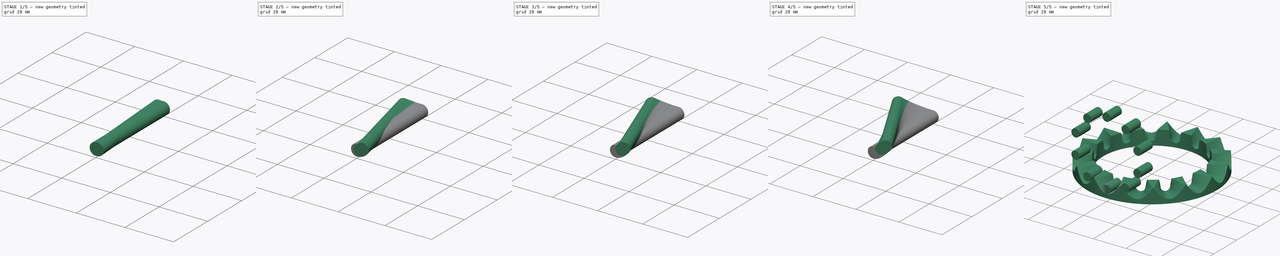
[diagram: build sequence overview — one tinted view per stage of 5, left to right]
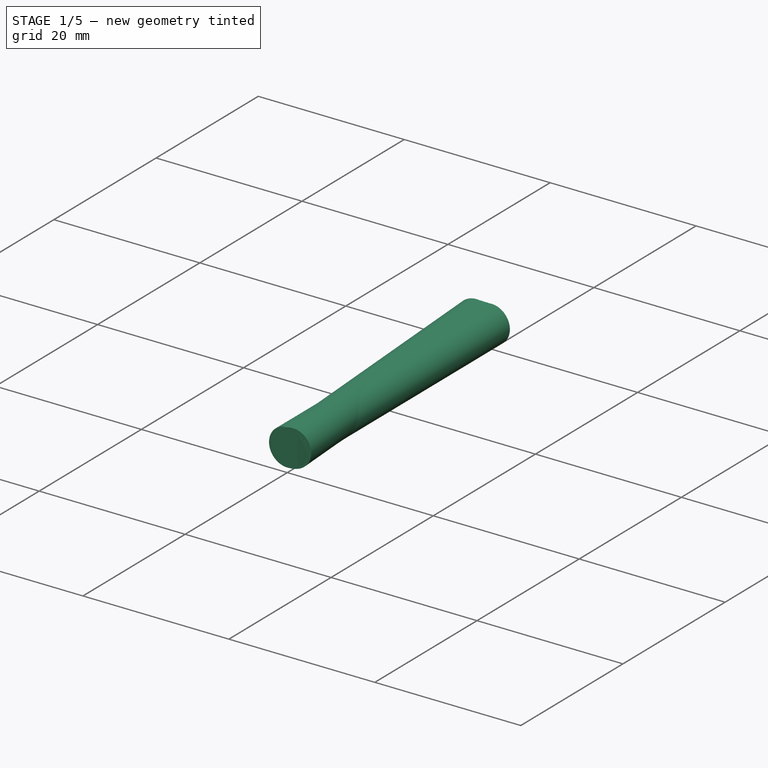
[diagram: stage 1 of 5 — iso view after this stage's code; geometry added in this stage tinted green]
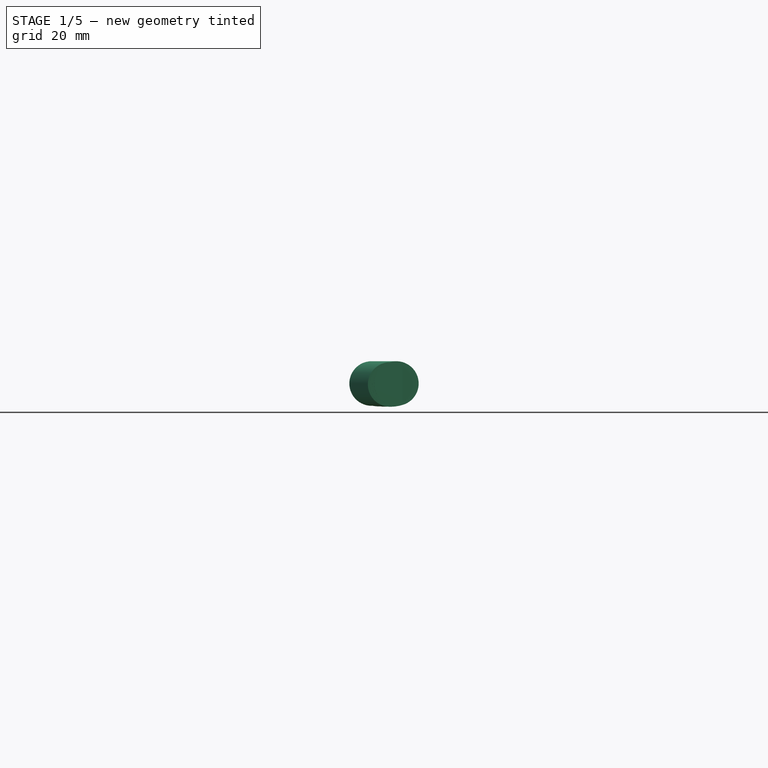
[diagram: stage 1 of 5 — front view after this stage's code; geometry added in this stage tinted green]
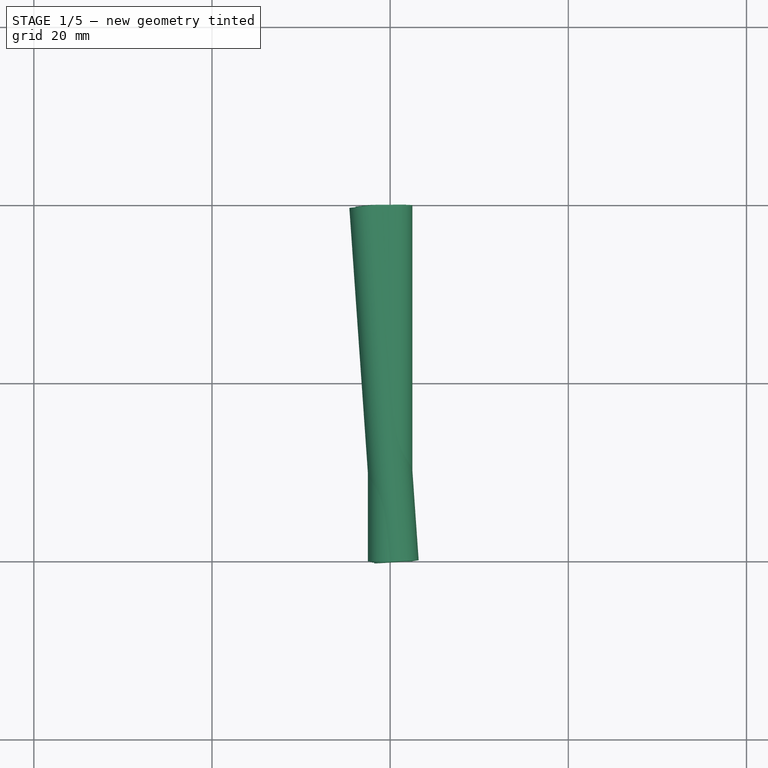
[diagram: stage 1 of 5 — top view after this stage's code; geometry added in this stage tinted green]
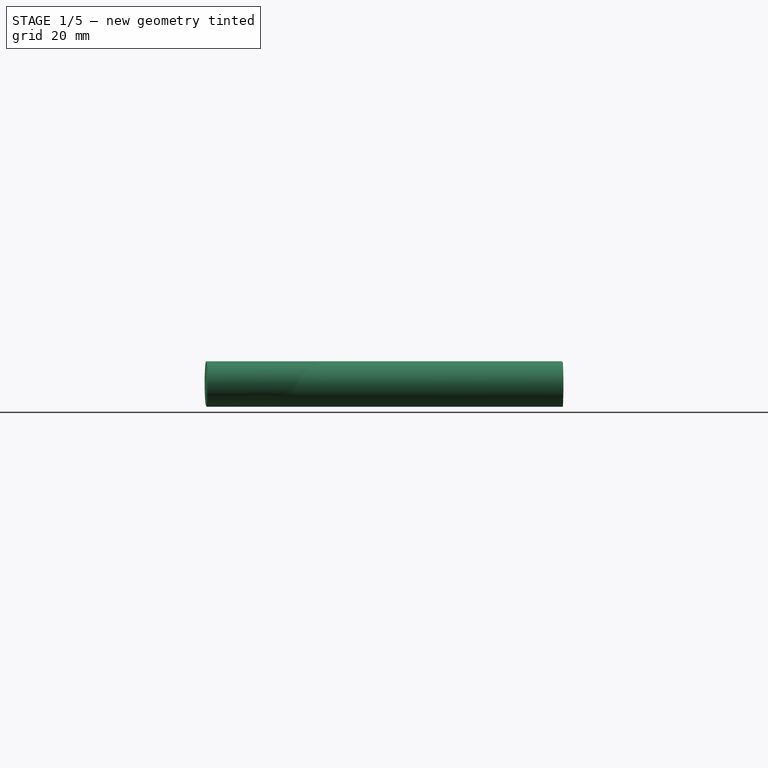
[diagram: stage 1 of 5 — right view after this stage's code; geometry added in this stage tinted green]
FCSTD DOCUMENT  (FreeCAD 1.2R20260210 (Git shallow))
Label: gear
License: All rights reserved
LicenseURL: https://en.wikipedia.org/wiki/All_rights_reserved
objects: Sketcher::SketchObject×27, PartDesign::Pad×24, App::Point×2, PartDesign::Body×2, Spreadsheet::Sheet×1, PartDesign::Boolean×1, PartDesign::Pocket×1, PartDesign::Mirrored×1, PartDesign::PolarPattern×1, PartDesign::MultiTransform×1
note: 139 computed .brp shape members not serialized (recipe doc carries the construction recipe); baked Part::Feature solids carry a one-line shape summary decoded from their .brp

FEATURE [Sketcher::SketchObject] Sketch001
  ArcFitTolerance = 1e-06
  AttachmentSupport = -> [XY_Plane]
  ExternalTypes = [0]
  FullyConstrained = false
  MakeInternals = false
  MapMode = 5
  expr: Constraints[3] = <<Spreadsheet>>.R_2
  expr: Constraints[7] = 360 / <<Spreadsheet>>.C_2_tooth / 2
  sketch-geometry (5):
    g0: Circle CenterX=0 CenterY=0 CenterZ=0 NormalX=0 NormalY=0 NormalZ=1 AngleXU=0 Radius=25.1461
    g1: Circle CenterX=0 CenterY=0 CenterZ=0 NormalX=0 NormalY=0 NormalZ=1 AngleXU=0 Radius=35.2299
    g2: Circle CenterX=0 CenterY=0 CenterZ=0 NormalX=0 NormalY=0 NormalZ=1 AngleXU=0 Radius=30
    g3: LineSegment StartX=0 StartY=0 StartZ=0 EndX=14.1422 EndY=-66.5338 EndZ=0
    g4: LineSegment StartX=0 StartY=0 StartZ=0 EndX=0 EndY=-65.3366 EndZ=0
  constraints (9):
    c: Coincident(g0,g-1)
    c: Coincident(g1,g0)
    c: Coincident(g2,g0)
    c: Radius(g2) = 30
    c: Coincident(g3,g0)
    c: Coincident(g4,g0)
    c: PointOnObject(g4,g-2)
    c: Angle(g4,g3) = 0.20944
    c: Radius(g0) = 25.1461
FEATURE [Sketcher::SketchObject] Sketch002
  ArcFitTolerance = 1e-06
  AttachmentOffset = pos=(0,25,0) rot=(0,0,1;0rad)
  AttachmentSupport = -> [XZ_Plane]
  ExternalTypes = [0]
  FullyConstrained = true
  MakeInternals = false
  MapMode = 5
  Placement = pos=(0,5.6e-15,25) rot=(1,0,0;1.5708rad)
  sketch-geometry (2):
    g0: Circle CenterX=0 CenterY=0 CenterZ=0 NormalX=0 NormalY=0 NormalZ=1 AngleXU=0 Radius=20
    g1: Circle CenterX=0 CenterY=0 CenterZ=0 NormalX=0 NormalY=0 NormalZ=1 AngleXU=0 Radius=22.5
  constraints (4):
    c: Coincident(g0,g-1)
    c: Diameter(g0) = 40
    c: Coincident(g1,g0)
    c: Diameter(g1) = 45
FEATURE [Sketcher::SketchObject] Sketch
  ArcFitTolerance = 1e-06
  AttachmentOffset = pos=(0,0,0) rot=(0,0,1;0.255982rad)
  AttachmentSupport = -> [XZ_Plane]
  ExternalTypes = [0]
  FullyConstrained = true
  MakeInternals = false
  MapMode = 5
  Placement = pos=(0,0,0) rot=(0.983838,-0.126614,0.126614;1.58709rad)
  expr: .AttachmentOffset.Rotation.Angle = <<Spreadsheet>>.A_1 * 11 * <<Spreadsheet>>.C_1_tooth / <<Spreadsheet>>.C_2_tooth
FEATURE [Sketcher::SketchObject] Sketch003
  ArcFitTolerance = 1e-06
  AttachmentOffset = pos=(0,5,0) rot=(0,0,1;0rad)
  AttachmentSupport = -> [XZ_Plane]
  ExternalTypes = [0]
  FullyConstrained = true
  MakeInternals = false
  MapMode = 5
  Placement = pos=(0,1.1e-15,5) rot=(1,0,0;1.5708rad)
  sketch-geometry (22):
    g0: GeomPoint X=0 Y=20 Z=0
    g1: Circle CenterX=-11.7557 CenterY=3.81966 CenterZ=0 NormalX=0 NormalY=0 NormalZ=1 AngleXU=0 Radius=2.5
    g2: Circle CenterX=-19.0211 CenterY=13.8197 CenterZ=0 NormalX=0 NormalY=0 NormalZ=1 AngleXU=0 Radius=2.5
    g3: Circle CenterX=-19.0211 CenterY=26.1803 CenterZ=0 NormalX=0 NormalY=0 NormalZ=1 AngleXU=0 Radius=2.5
    g4: Circle CenterX=-11.7557 CenterY=36.1803 CenterZ=0 NormalX=0 NormalY=0 NormalZ=1 AngleXU=0 Radius=2.5
    g5: Circle CenterX=11.7557 CenterY=36.1803 CenterZ=0 NormalX=0 NormalY=0 NormalZ=1 AngleXU=0 Radius=2.5
    g6: Circle CenterX=19.0211 CenterY=26.1803 CenterZ=0 NormalX=0 NormalY=0 NormalZ=1 AngleXU=0 Radius=2.5
    g7: Circle CenterX=19.0211 CenterY=13.8197 CenterZ=0 NormalX=0 NormalY=0 NormalZ=1 AngleXU=0 Radius=2.5
    g8: Circle CenterX=11.7557 CenterY=3.81966 CenterZ=0 NormalX=0 NormalY=0 NormalZ=1 AngleXU=0 Radius=2.5
    g9: LineSegment [constr] StartX=11.7557 StartY=3.81966 StartZ=0 EndX=19.0211 EndY=13.8197 EndZ=0
    g10: LineSegment [constr] StartX=19.0211 StartY=13.8197 StartZ=0 EndX=19.0211 EndY=26.1803 EndZ=0
    g11: LineSegment [constr] StartX=19.0211 StartY=26.1803 StartZ=0 EndX=11.7557 EndY=36.1803 EndZ=0
    g12: LineSegment [constr] StartX=11.7557 StartY=36.1803 StartZ=0 EndX=0 EndY=40 EndZ=0
    g13: LineSegment [constr] StartX=0 StartY=40 StartZ=0 EndX=-11.7557 EndY=36.1803 EndZ=0
    g14: LineSegment [constr] StartX=-11.7557 StartY=36.1803 StartZ=0 EndX=-19.0211 EndY=26.1803 EndZ=0
    g15: LineSegment [constr] StartX=-19.0211 StartY=26.1803 StartZ=0 EndX=-19.0211 EndY=13.8197 EndZ=0
    g16: LineSegment [constr] StartX=-19.0211 StartY=13.8197 StartZ=0 EndX=-11.7557 EndY=3.81966 EndZ=0
    g17: Circle [constr] CenterX=0 CenterY=20 CenterZ=0 NormalX=0 NormalY=0 NormalZ=1 AngleXU=0 Radius=20
    g18: Circle CenterX=0 CenterY=-4e-16 CenterZ=0 NormalX=0 NormalY=0 NormalZ=1 AngleXU=0 Radius=2.5
    g19: LineSegment [constr] StartX=-11.7557 StartY=3.81966 StartZ=0 EndX=0 EndY=-4e-16 EndZ=0
    g20: LineSegment [constr] StartX=11.7557 StartY=3.81966 StartZ=0 EndX=0 EndY=-4e-16 EndZ=0
    g21: Circle CenterX=0 CenterY=40 CenterZ=0 NormalX=0 NormalY=0 NormalZ=1 AngleXU=0 Radius=2.5
  constraints (53):
    c: PointOnObject(g0,g-2)
    c: DistanceY(g0) = 20
    c: Coincident(g9,g7)
    c: Coincident(g9,g10)
    c: Coincident(g10,g6)
    c: Coincident(g10,g11)
    c: Coincident(g11,g5)
    c: Coincident(g11,g12)
    c: Coincident(g12,g13)
    c: Coincident(g13,g4)
    c: Coincident(g13,g14)
    c: Coincident(g14,g3)
    c: Coincident(g14,g15)
    c: Coincident(g15,g2)
    c: Coincident(g15,g16)
    c: Coincident(g16,g1)
    c: Coincident(g17,g0)
    c: PointOnObject(g7,g17)
    c: PointOnObject(g8,g17)
    c: PointOnObject(g6,g17)
    c: PointOnObject(g5,g17)
    c: PointOnObject(g4,g17)
    c: PointOnObject(g3,g17)
    c: PointOnObject(g2,g17)
    c: PointOnObject(g1,g17)
    c: PointOnObject(g-1,g17)
    c: Diameter(g18) = 5
    c: Coincident(g19,g1)
    c: Coincident(g19,g18)
    c: Coincident(g18,g-1)
    c: Coincident(g8,g9)
    c: Coincident(g20,g8)
    c: Coincident(g20,g18)
    c: Equal(g20,g9)
    c: Equal(g9,g10)
    c: Equal(g10,g11)
    c: Equal(g11,g12)
    c: Equal(g12,g13)
    c: Equal(g13,g14)
    c: Equal(g14,g15)
    c: Equal(g16,g19)
    c: Equal(g15,g16)
    c: Equal(g20,g19)
    c: Equal(g18,g8)
    c: Equal(g18,g7)
    c: Equal(g18,g6)
    c: Equal(g18,g5)
    c: Coincident(g21,g12)
    c: Equal(g21,g18)
    c: Equal(g4,g18)
    c: Equal(g3,g18)
    c: Equal(g2,g18)
    c: Equal(g1,g18)
FEATURE [Sketcher::SketchObject] Sketch004
  ArcFitTolerance = 1e-06
  AttachmentOffset = pos=(0,5,0) rot=(0,1,0;0.023271rad)
  AttachmentSupport = -> [XZ_Plane]
  ExternalTypes = [0]
  FullyConstrained = true
  MakeInternals = false
  MapMode = 5
  Placement = pos=(0,1.1e-15,5) rot=(0.999865,0.011634,0.011634;1.57093rad)
  expr: .AttachmentOffset.Rotation.Angle = <<Spreadsheet>>.A_1 * <<Spreadsheet>>.C_1_tooth / <<Spreadsheet>>.C_2_tooth
  expr: Constraints[2] = <<Spreadsheet>>.R_1
  expr: Constraints[7] = <<Spreadsheet>>.A_1
  sketch-geometry (3):
    g0: Circle CenterX=-0.69799 CenterY=0.0121835 CenterZ=0 NormalX=0 NormalY=0 NormalZ=1 AngleXU=0 Radius=2.5
    g1: Circle [constr] CenterX=1e-16 CenterY=20 CenterZ=0 NormalX=0 NormalY=0 NormalZ=1 AngleXU=0 Radius=20
    g2: LineSegment [constr] StartX=-0.69799 StartY=0.0121835 StartZ=0 EndX=1e-16 EndY=20 EndZ=0
  constraints (8):
    c: Diameter(g0) = 5
    c: PointOnObject(g1,g-2)
    c: Radius(g1) = 20
    c: PointOnObject(g0,g1)
    c: PointOnObject(g-1,g1)
    c: Coincident(g2,g0)
    c: Coincident(g2,g1)
    c: Angle(g2,g-2) = 0.0349066
FEATURE [PartDesign::Pad] Pad
  Direction = (0,-1,2e-16)
  Length = 40
  Length2 = 10
  Placement = pos=(0,0,0) rot=(1,0,0;1.5708rad)
  Profile = -> Sketch003 [Edge9]
  ReferenceAxis = -> Sketch003 [N_Axis]
  Refine = true
  SideType = 0
  Suppressed = false
  Type = 0
  Type2 = 0
FEATURE [Spreadsheet::Sheet] Spreadsheet
  cells = A1='R_1; B1(R_1)=20; A2='C_1_tooth; B2(C_1_tooth)=10; A3='C_2_tooth; B3(C_2_tooth)=15; A4='R_2; B4(R_2)==R_1 * C_2_tooth / C_1_tooth; C4=' = R_1  *  C_2_tooth  /  C_1_tooth; A6='A_1; B6(A_1)=2; C6='step angle
FEATURE [App::Point] Origin001  label="Origin"
  Role = Origin
FEATURE [PartDesign::Pad] Pad001
  BaseFeature = -> Pad
  Direction = (0.023269,-0.999729,2e-16)
  Length = 40
  Length2 = 10
  Placement = pos=(0,0,0) rot=(1,0,0;1.5708rad)
  Profile = -> Sketch004
  ReferenceAxis = -> Sketch004 [N_Axis]
  Refine = true
  SideType = 0
  Suppressed = false
  Type = 0
  Type2 = 0
FEATURE [Sketcher::SketchObject] Sketch005
  ArcFitTolerance = 1e-06
  AttachmentOffset = pos=(0,5,0) rot=(0,1,0;0.046542rad)
  AttachmentSupport = -> [XZ_Plane]
  ExternalTypes = [0]
  FullyConstrained = true
  MakeInternals = false
  MapMode = 5
  Placement = pos=(0,1.1e-15,5) rot=(0.999459,0.023263,0.023263;1.57134rad)
  expr: .AttachmentOffset.Rotation.Angle = <<Spreadsheet>>.A_1 * 2 * <<Spreadsheet>>.C_1_tooth / <<Spreadsheet>>.C_2_tooth
  expr: Constraints[2] = <<Spreadsheet>>.R_1
  expr: Constraints[7] = <<Spreadsheet>>.A_1 * 2
  sketch-geometry (3):
    g0: Circle CenterX=-1.39513 CenterY=0.048719 CenterZ=0 NormalX=0 NormalY=0 NormalZ=1 AngleXU=0 Radius=2.5
    g1: Circle [constr] CenterX=0 CenterY=20 CenterZ=0 NormalX=0 NormalY=0 NormalZ=1 AngleXU=0 Radius=20
    g2: LineSegment [constr] StartX=-1.39513 StartY=0.048719 StartZ=0 EndX=0 EndY=20 EndZ=0
  constraints (8):
    c: Diameter(g0) = 5
    c: PointOnObject(g1,g-2)
    c: Radius(g1) = 20
    c: PointOnObject(g0,g1)
    c: PointOnObject(g-1,g1)
    c: Coincident(g2,g0)
    c: Coincident(g2,g1)
    c: Angle(g2,g-2) = 0.0698132
FEATURE [PartDesign::Pad] Pad002
  BaseFeature = -> Pad001
  Direction = (0.0465253,-0.998917,1e-16)
  Length = 40
  Length2 = 10
  Placement = pos=(0,0,0) rot=(1,0,0;1.5708rad)
  Profile = -> Sketch005
  ReferenceAxis = -> Sketch005 [N_Axis]
  Refine = true
  SideType = 0
  Suppressed = false
  Type = 0
  Type2 = 0
FEATURE [Sketcher::SketchObject] Sketch006
  ArcFitTolerance = 1e-06
  AttachmentOffset = pos=(0,5,0) rot=(0,1,0;0.069813rad)
  AttachmentSupport = -> [XZ_Plane]
  ExternalTypes = [0]
  FullyConstrained = true
  MakeInternals = false
  MapMode = 5
  Placement = pos=(0,1.1e-15,5) rot=(0.998783,0.034878,0.034878;1.57201rad)
  expr: .AttachmentOffset.Rotation.Angle = <<Spreadsheet>>.A_1 * 3 * <<Spreadsheet>>.C_1_tooth / <<Spreadsheet>>.C_2_tooth
  expr: Constraints[2] = <<Spreadsheet>>.R_1
  expr: Constraints[7] = <<Spreadsheet>>.A_1 * 3
  sketch-geometry (3):
    g0: Circle CenterX=-2.09057 CenterY=0.109562 CenterZ=0 NormalX=0 NormalY=0 NormalZ=1 AngleXU=0 Radius=2.5
    g1: Circle [constr] CenterX=0 CenterY=20 CenterZ=0 NormalX=0 NormalY=0 NormalZ=1 AngleXU=0 Radius=20
    g2: LineSegment [constr] StartX=-2.09057 StartY=0.109562 StartZ=0 EndX=0 EndY=20 EndZ=0
  constraints (8):
    c: Diameter(g0) = 5
    c: PointOnObject(g1,g-2)
    c: Radius(g1) = 20
    c: PointOnObject(g0,g1)
    c: PointOnObject(g-1,g1)
    c: Coincident(g2,g0)
    c: Coincident(g2,g1)
    c: Angle(g2,g-2) = 0.10472
FEATURE [PartDesign::Pad] Pad003
  BaseFeature = -> Pad002
  Direction = (0.0697565,-0.997564,2e-16)
  Length = 40
  Length2 = 10
  Placement = pos=(0,0,0) rot=(1,0,0;1.5708rad)
  Profile = -> Sketch006
  ReferenceAxis = -> Sketch006 [N_Axis]
  Refine = true
  SideType = 0
  Suppressed = false
  Type = 0
  Type2 = 0
FEATURE [Sketcher::SketchObject] Sketch033  label="Sketch021"
  ArcFitTolerance = 1e-06
  AttachmentOffset = pos=(0,5,0) rot=(0,1,0;0.418879rad)
  AttachmentSupport = -> [XZ_Plane]
  ExternalTypes = [0]
  FullyConstrained = true
  MakeInternals = false
  MapMode = 5
  Placement = pos=(0,1.1e-15,5) rot=(0.957668,0.203559,0.203559;1.61404rad)
  expr: .AttachmentOffset.Rotation.Angle = <<Spreadsheet>>.A_1 * 18 * <<Spreadsheet>>.C_1_tooth / <<Spreadsheet>>.C_2_tooth
  expr: Constraints[2] = <<Spreadsheet>>.R_1
  expr: Constraints[7] = <<Spreadsheet>>.A_1 * 18
  sketch-geometry (3):
    g0: Circle CenterX=-11.7557 CenterY=3.81966 CenterZ=0 NormalX=0 NormalY=0 NormalZ=1 AngleXU=0 Radius=2.5
    g1: Circle [constr] CenterX=0 CenterY=20 CenterZ=0 NormalX=0 NormalY=0 NormalZ=1 AngleXU=0 Radius=20
    g2: LineSegment [constr] StartX=-11.7557 StartY=3.81966 StartZ=0 EndX=0 EndY=20 EndZ=0
  constraints (8):
    c: Diameter(g0) = 5
    c: PointOnObject(g1,g-2)
    c: Radius(g1) = 20
    c: PointOnObject(g0,g1)
    c: PointOnObject(g-1,g1)
    c: Coincident(g2,g0)
    c: Coincident(g2,g1)
    c: Angle(g2,g-2) = 0.628319
FEATURE [Sketcher::SketchObject] Sketch034  label="Sketch022"
  ArcFitTolerance = 1e-06
  AttachmentOffset = pos=(0,5,0) rot=(0,1,0;0.44215rad)
  AttachmentSupport = -> [XZ_Plane]
  ExternalTypes = [0]
  FullyConstrained = true
  MakeInternals = false
  MapMode = 5
  Placement = pos=(0,1.1e-15,5) rot=(0.953019,0.21419,0.21419;1.6189rad)
  expr: .AttachmentOffset.Rotation.Angle = <<Spreadsheet>>.A_1 * 19 * <<Spreadsheet>>.C_1_tooth / <<Spreadsheet>>.C_2_tooth
  expr: Constraints[2] = <<Spreadsheet>>.R_1
  expr: Constraints[7] = <<Spreadsheet>>.A_1 * 19
  sketch-geometry (3):
    g0: Circle CenterX=-12.3132 CenterY=4.23978 CenterZ=0 NormalX=0 NormalY=0 NormalZ=1 AngleXU=0 Radius=2.5
    g1: Circle [constr] CenterX=0 CenterY=20 CenterZ=0 NormalX=0 NormalY=0 NormalZ=1 AngleXU=0 Radius=20
    g2: LineSegment [constr] StartX=-12.3132 StartY=4.23978 StartZ=0 EndX=0 EndY=20 EndZ=0
  constraints (8):
    c: Diameter(g0) = 5
    c: PointOnObject(g1,g-2)
    c: Radius(g1) = 20
    c: PointOnObject(g0,g1)
    c: PointOnObject(g-1,g1)
    c: Coincident(g2,g0)
    c: Coincident(g2,g1)
    c: Angle(g2,g-2) = 0.663225
FEATURE [Sketcher::SketchObject] Sketch035  label="Sketch023"
  ArcFitTolerance = 1e-06
  AttachmentOffset = pos=(0,5,0) rot=(0,1,0;0.465421rad)
  AttachmentSupport = -> [XZ_Plane]
  ExternalTypes = [0]
  FullyConstrained = true
  MakeInternals = false
  MapMode = 5
  Placement = pos=(0,1.1e-15,5) rot=(0.948158,0.224718,0.224718;1.624rad)
  expr: .AttachmentOffset.Rotation.Angle = <<Spreadsheet>>.A_1 * 20 * <<Spreadsheet>>.C_1_tooth / <<Spreadsheet>>.C_2_tooth
  expr: Constraints[2] = <<Spreadsheet>>.R_1
  expr: Constraints[7] = <<Spreadsheet>>.A_1 * 20
  sketch-geometry (3):
    g0: Circle CenterX=-12.8558 CenterY=4.67911 CenterZ=0 NormalX=0 NormalY=0 NormalZ=1 AngleXU=0 Radius=2.5
    g1: Circle [constr] CenterX=0 CenterY=20 CenterZ=0 NormalX=0 NormalY=0 NormalZ=1 AngleXU=0 Radius=20
    g2: LineSegment [constr] StartX=-12.8558 StartY=4.67911 StartZ=0 EndX=0 EndY=20 EndZ=0
  constraints (8):
    c: Diameter(g0) = 5
    c: PointOnObject(g1,g-2)
    c: Radius(g1) = 20
    c: PointOnObject(g0,g1)
    c: PointOnObject(g-1,g1)
    c: Coincident(g2,g0)
    c: Coincident(g2,g1)
    c: Angle(g2,g-2) = 0.698132
FEATURE [PartDesign::Pad] Pad026  label="Pad004"
  BaseFeature = -> Pad003
  Direction = (0.0929499,-0.995671,2e-16)
  Length = 40
  Length2 = 10
  Placement = pos=(0,0,0) rot=(1,0,0;1.5708rad)
  Profile = -> Sketch007
  ReferenceAxis = -> Sketch007 [N_Axis]
  Refine = true
  SideType = 0
  Suppressed = false
  Type = 0
  Type2 = 0
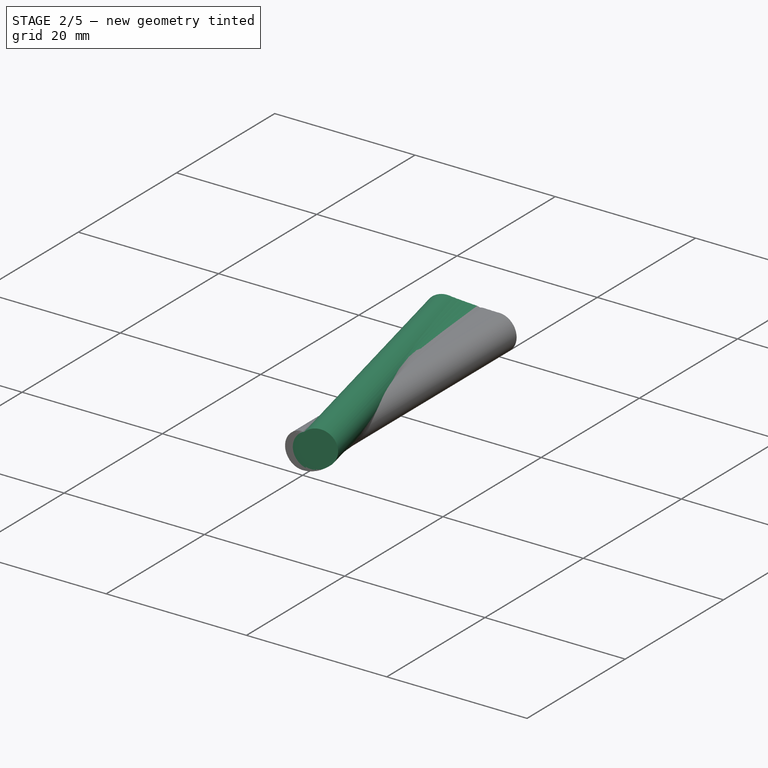
[diagram: stage 2 of 5 — iso view after this stage's code; geometry added in this stage tinted green]
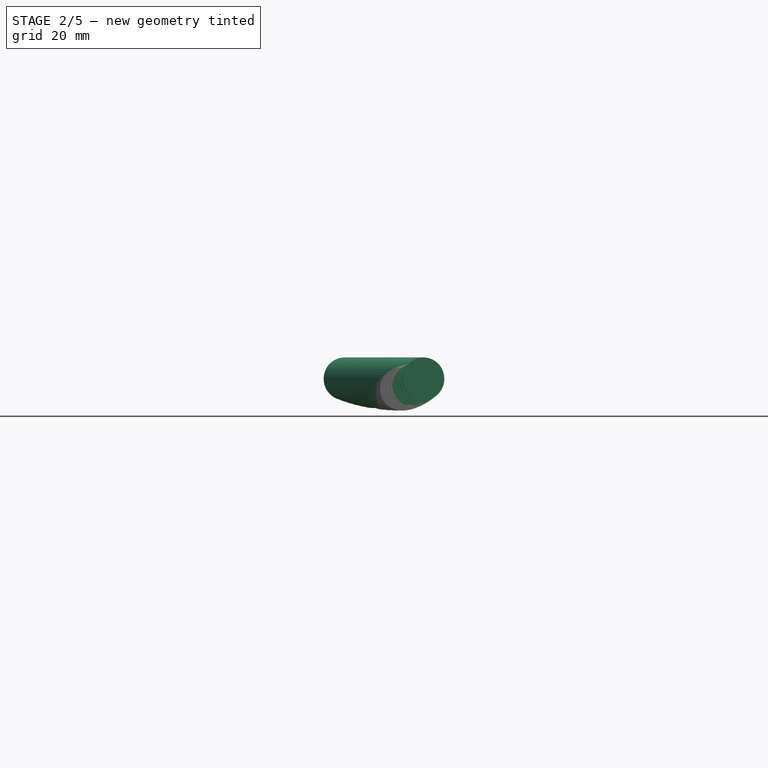
[diagram: stage 2 of 5 — front view after this stage's code; geometry added in this stage tinted green]
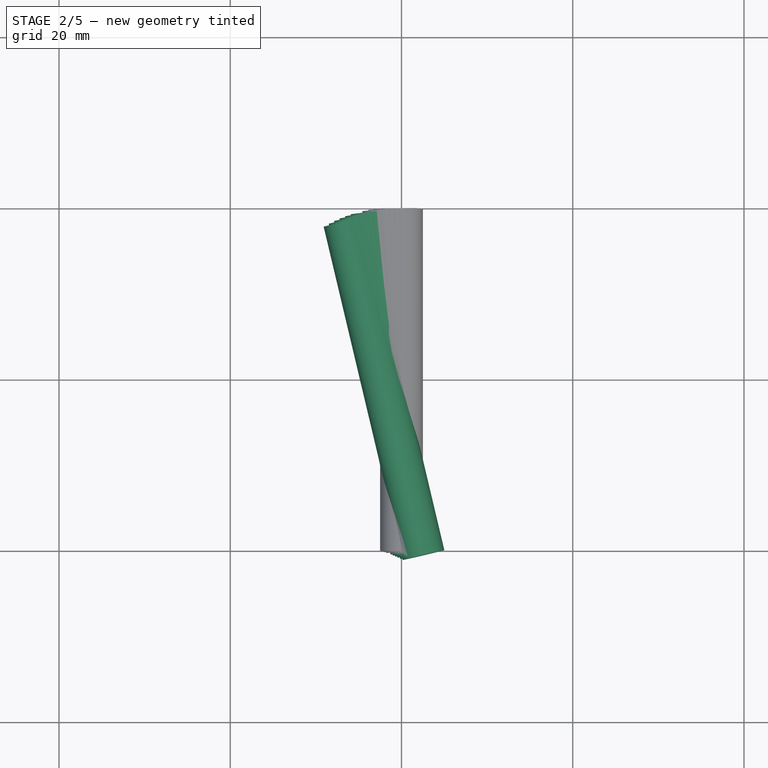
[diagram: stage 2 of 5 — top view after this stage's code; geometry added in this stage tinted green]
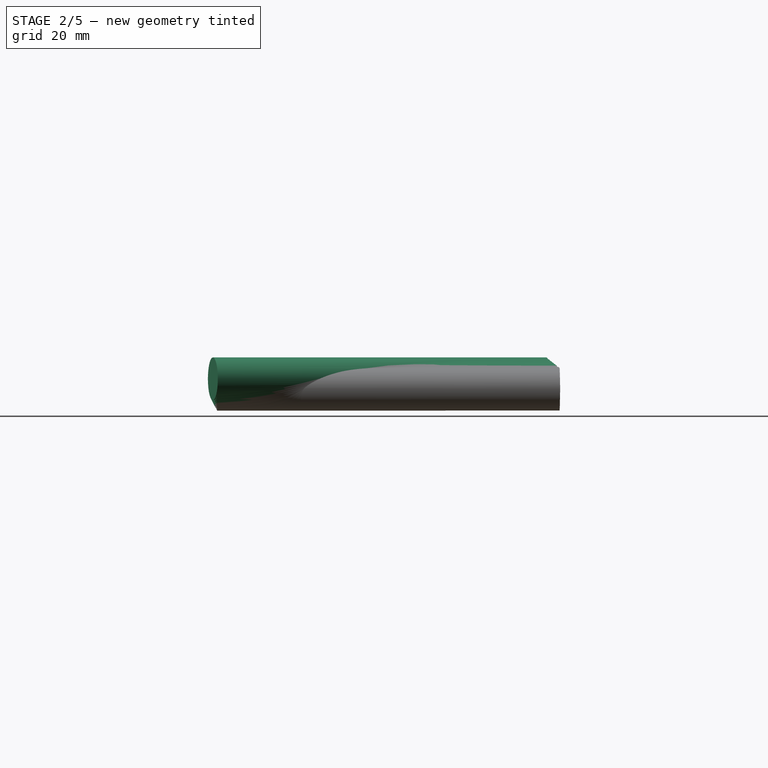
[diagram: stage 2 of 5 — right view after this stage's code; geometry added in this stage tinted green]
FEATURE [PartDesign::Pad] Pad007  label="Pad005"
  BaseFeature = -> Pad026
  Direction = (0.116093,-0.993238,1e-16)
  Length = 40
  Length2 = 10
  Placement = pos=(0,0,0) rot=(1,0,0;1.5708rad)
  Profile = -> Sketch011
  ReferenceAxis = -> Sketch011 [N_Axis]
  Refine = true
  SideType = 0
  Suppressed = false
  Type = 0
  Type2 = 0
FEATURE [PartDesign::Pad] Pad008  label="Pad006"
  BaseFeature = -> Pad007
  Direction = (0.139173,-0.990268,2e-16)
  Length = 40
  Length2 = 10
  Placement = pos=(0,0,0) rot=(1,0,0;1.5708rad)
  Profile = -> Sketch019
  ReferenceAxis = -> Sketch019 [N_Axis]
  Refine = true
  SideType = 0
  Suppressed = false
  Type = 0
  Type2 = 0
FEATURE [PartDesign::Pad] Pad009  label="Pad007"
  BaseFeature = -> Pad008
  Direction = (0.162178,-0.986762,2e-16)
  Length = 40
  Length2 = 10
  Placement = pos=(0,0,0) rot=(1,0,0;1.5708rad)
  Profile = -> Sketch020
  ReferenceAxis = -> Sketch020 [N_Axis]
  Refine = true
  SideType = 0
  Suppressed = false
  Type = 0
  Type2 = 0
FEATURE [PartDesign::Pad] Pad010  label="Pad008"
  BaseFeature = -> Pad009
  Direction = (0.185095,-0.982721,2e-16)
  Length = 40
  Length2 = 10
  Placement = pos=(0,0,0) rot=(1,0,0;1.5708rad)
  Profile = -> Sketch021
  ReferenceAxis = -> Sketch021 [N_Axis]
  Refine = true
  SideType = 0
  Suppressed = false
  Type = 0
  Type2 = 0
FEATURE [PartDesign::Pad] Pad011  label="Pad009"
  BaseFeature = -> Pad010
  Direction = (0.207912,-0.978148,1e-16)
  Length = 40
  Length2 = 10
  Placement = pos=(0,0,0) rot=(1,0,0;1.5708rad)
  Profile = -> Sketch022
  ReferenceAxis = -> Sketch022 [N_Axis]
  Refine = true
  SideType = 0
  Suppressed = false
  Type = 0
  Type2 = 0
FEATURE [PartDesign::Pad] Pad013  label="Pad010"
  BaseFeature = -> Pad011
  Direction = (0.230616,-0.973045,2e-16)
  Length = 40
  Length2 = 10
  Placement = pos=(0,0,0) rot=(1,0,0;1.5708rad)
  Profile = -> Sketch023
  ReferenceAxis = -> Sketch023 [N_Axis]
  Refine = true
  SideType = 0
  Suppressed = false
  Type = 0
  Type2 = 0
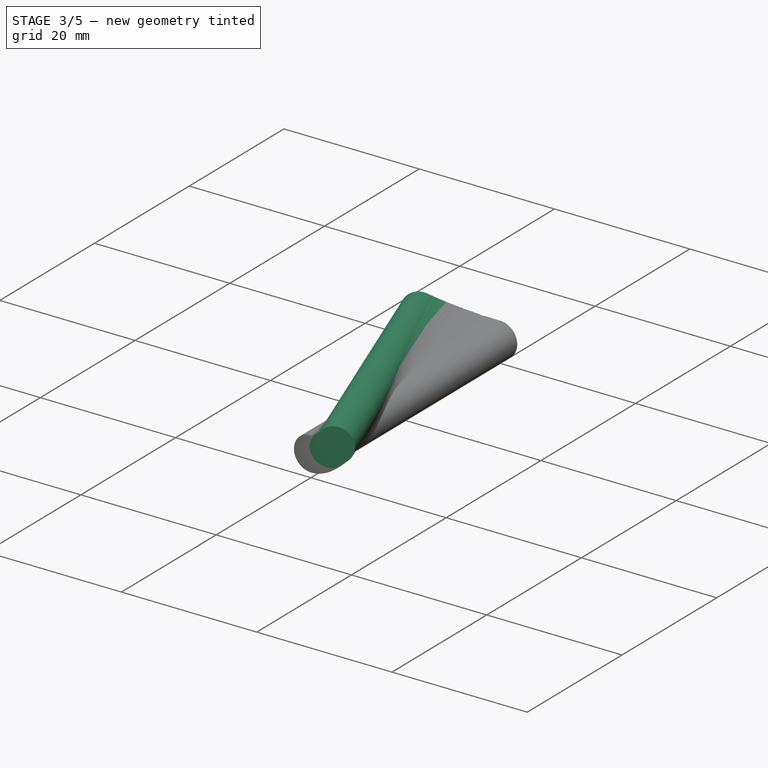
[diagram: stage 3 of 5 — iso view after this stage's code; geometry added in this stage tinted green]
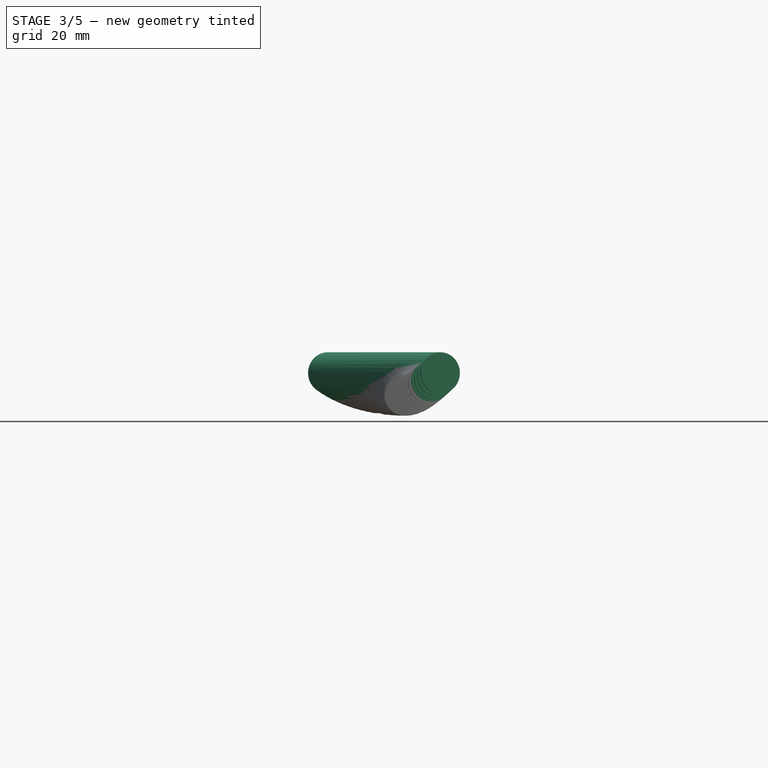
[diagram: stage 3 of 5 — front view after this stage's code; geometry added in this stage tinted green]
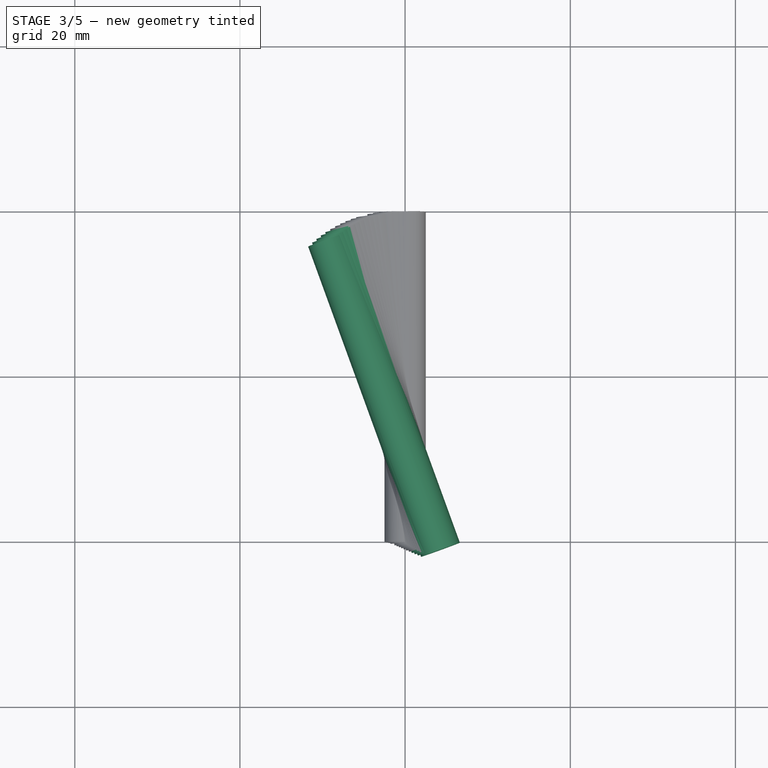
[diagram: stage 3 of 5 — top view after this stage's code; geometry added in this stage tinted green]
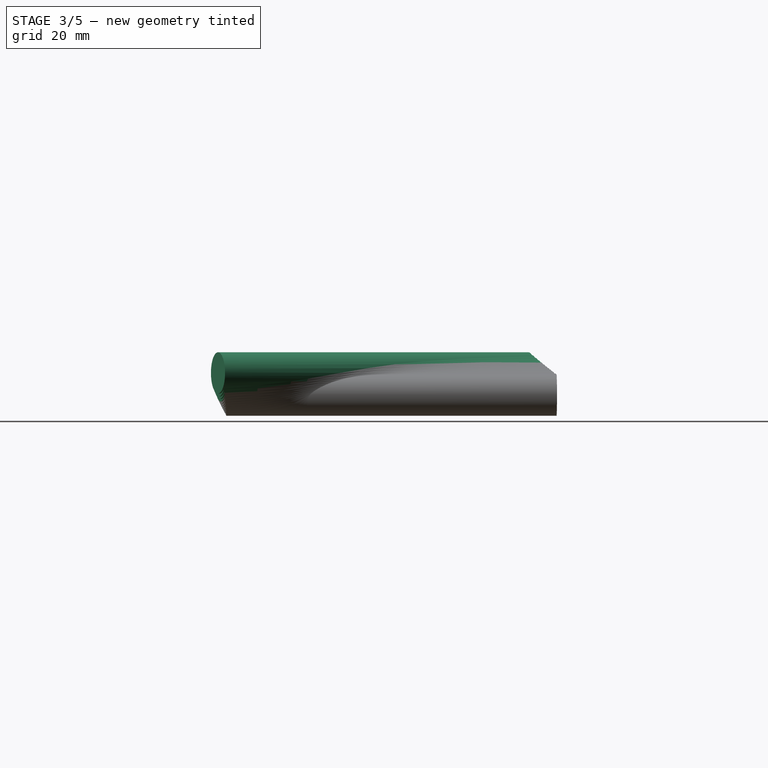
[diagram: stage 3 of 5 — right view after this stage's code; geometry added in this stage tinted green]
FEATURE [PartDesign::Pad] Pad014  label="Pad011"
  BaseFeature = -> Pad013
  Direction = (0.253195,-0.967415,2e-16)
  Length = 40
  Length2 = 10
  Placement = pos=(0,0,0) rot=(1,0,0;1.5708rad)
  Profile = -> Sketch024
  ReferenceAxis = -> Sketch024 [N_Axis]
  Refine = true
  SideType = 0
  Suppressed = false
  Type = 0
  Type2 = 0
FEATURE [PartDesign::Pad] Pad015  label="Pad012"
  BaseFeature = -> Pad014
  Direction = (0.275637,-0.961262,2e-16)
  Length = 40
  Length2 = 10
  Placement = pos=(0,0,0) rot=(1,0,0;1.5708rad)
  Profile = -> Sketch025
  ReferenceAxis = -> Sketch025 [N_Axis]
  Refine = true
  SideType = 0
  Suppressed = false
  Type = 0
  Type2 = 0
FEATURE [PartDesign::Pad] Pad016  label="Pad013"
  BaseFeature = -> Pad015
  Direction = (0.29793,-0.954588,2e-16)
  Length = 40
  Length2 = 10
  Placement = pos=(0,0,0) rot=(1,0,0;1.5708rad)
  Profile = -> Sketch026
  ReferenceAxis = -> Sketch026 [N_Axis]
  Refine = true
  SideType = 0
  Suppressed = false
  Type = 0
  Type2 = 0
FEATURE [PartDesign::Pad] Pad017  label="Pad014"
  BaseFeature = -> Pad016
  Direction = (0.320062,-0.947397,1e-16)
  Length = 40
  Length2 = 10
  Placement = pos=(0,0,0) rot=(1,0,0;1.5708rad)
  Profile = -> Sketch027
  ReferenceAxis = -> Sketch027 [N_Axis]
  Refine = true
  SideType = 0
  Suppressed = false
  Type = 0
  Type2 = 0
FEATURE [PartDesign::Pad] Pad018  label="Pad015"
  BaseFeature = -> Pad017
  Direction = (0.34202,-0.939693,1e-16)
  Length = 40
  Length2 = 10
  Placement = pos=(0,0,0) rot=(1,0,0;1.5708rad)
  Profile = -> Sketch028
  ReferenceAxis = -> Sketch028 [N_Axis]
  Refine = true
  SideType = 0
  Suppressed = false
  Type = 0
  Type2 = 0
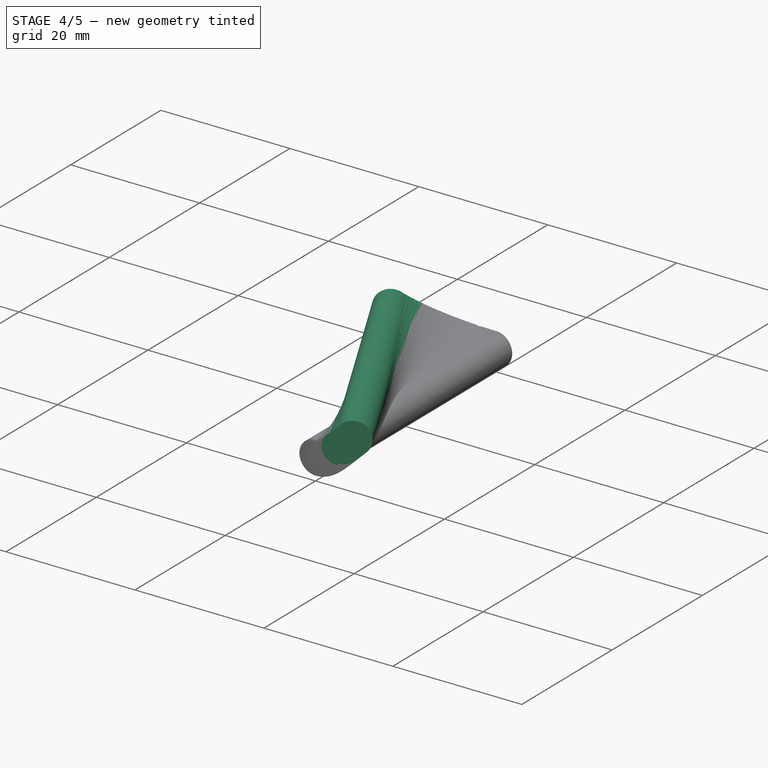
[diagram: stage 4 of 5 — iso view after this stage's code; geometry added in this stage tinted green]
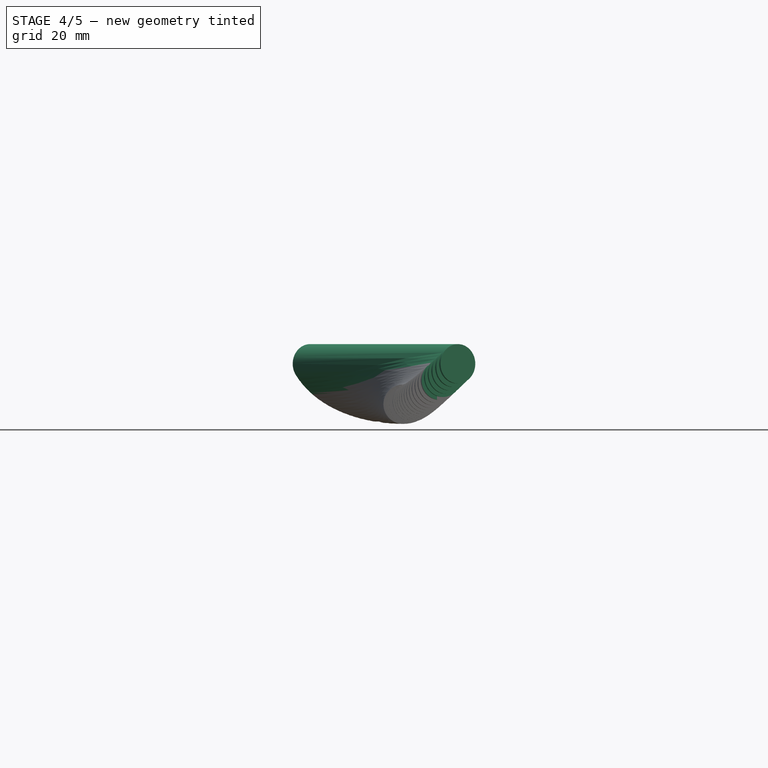
[diagram: stage 4 of 5 — front view after this stage's code; geometry added in this stage tinted green]
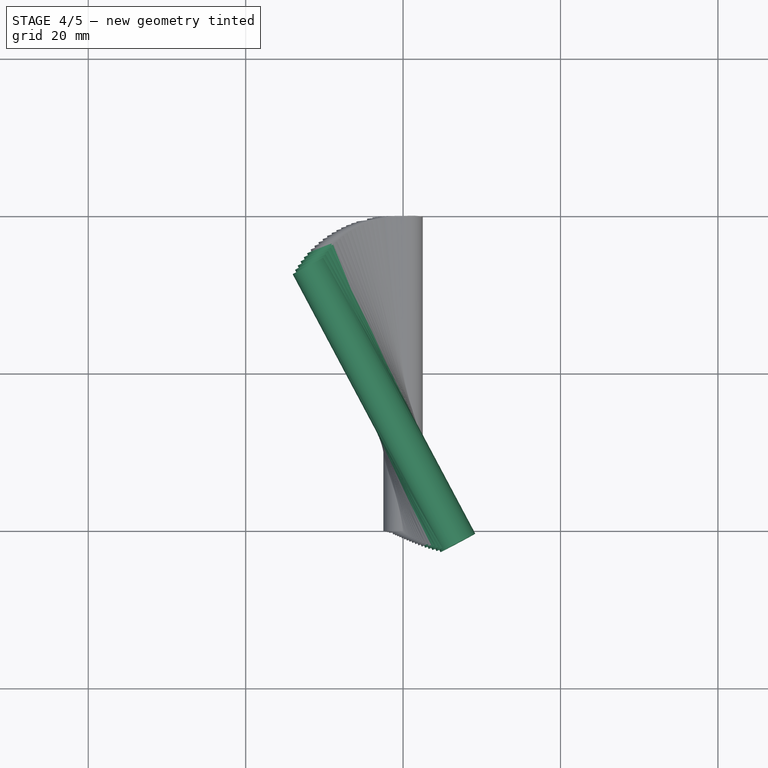
[diagram: stage 4 of 5 — top view after this stage's code; geometry added in this stage tinted green]
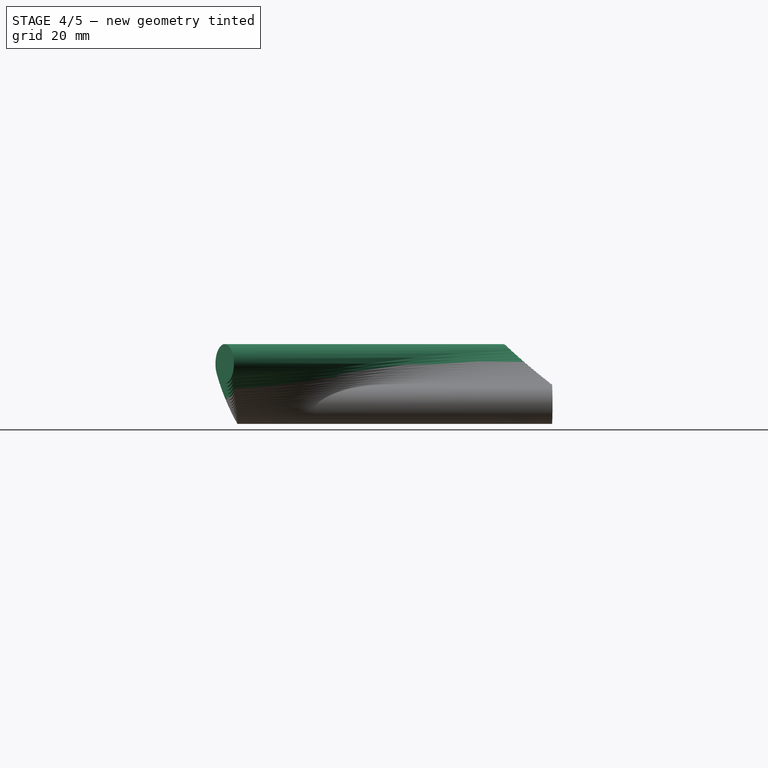
[diagram: stage 4 of 5 — right view after this stage's code; geometry added in this stage tinted green]
FEATURE [PartDesign::Pad] Pad020  label="Pad016"
  BaseFeature = -> Pad018
  Direction = (0.363793,-0.93148,2e-16)
  Length = 40
  Length2 = 10
  Placement = pos=(0,0,0) rot=(1,0,0;1.5708rad)
  Profile = -> Sketch030
  ReferenceAxis = -> Sketch030 [N_Axis]
  Refine = true
  SideType = 0
  Suppressed = false
  Type = 0
  Type2 = 0
FEATURE [PartDesign::Pad] Pad021  label="Pad017"
  BaseFeature = -> Pad020
  Direction = (0.385369,-0.922762,2e-16)
  Length = 40
  Length2 = 10
  Placement = pos=(0,0,0) rot=(1,0,0;1.5708rad)
  Profile = -> Sketch031
  ReferenceAxis = -> Sketch031 [N_Axis]
  Refine = true
  SideType = 0
  Suppressed = false
  Type = 0
  Type2 = 0
FEATURE [PartDesign::Pad] Pad023  label="Pad018"
  BaseFeature = -> Pad021
  Direction = (0.406737,-0.913545,1e-16)
  Length = 40
  Length2 = 10
  Placement = pos=(0,0,0) rot=(1,0,0;1.5708rad)
  Profile = -> Sketch033
  ReferenceAxis = -> Sketch033 [N_Axis]
  Refine = true
  SideType = 0
  Suppressed = false
  Type = 0
  Type2 = 0
FEATURE [PartDesign::Pad] Pad024  label="Pad019"
  BaseFeature = -> Pad023
  Direction = (0.427884,-0.903834,2e-16)
  Length = 40
  Length2 = 10
  Placement = pos=(0,0,0) rot=(1,0,0;1.5708rad)
  Profile = -> Sketch034
  ReferenceAxis = -> Sketch034 [N_Axis]
  Refine = true
  SideType = 0
  Suppressed = false
  Type = 0
  Type2 = 0
FEATURE [PartDesign::Pad] Pad025  label="Pad020"
  BaseFeature = -> Pad024
  Direction = (0.448799,-0.893633,2e-16)
  Length = 40
  Length2 = 10
  Placement = pos=(0,0,0) rot=(1,0,0;1.5708rad)
  Profile = -> Sketch035
  ReferenceAxis = -> Sketch035 [N_Axis]
  Refine = true
  SideType = 0
  Suppressed = false
  Type = 0
  Type2 = 0
FEATURE [Sketcher::SketchObject] Sketch036  label="Sketch024"
  ArcFitTolerance = 1e-06
  AttachmentOffset = pos=(0,5,0) rot=(0,1,0;0.488692rad)
  AttachmentSupport = -> [XZ_Plane]
  ExternalTypes = [0]
  FullyConstrained = true
  MakeInternals = false
  MapMode = 5
  Placement = pos=(0,1.1e-15,5) rot=(0.94309,0.235139,0.235139;1.62936rad)
  expr: .AttachmentOffset.Rotation.Angle = <<Spreadsheet>>.A_1 * 21 * <<Spreadsheet>>.C_1_tooth / <<Spreadsheet>>.C_2_tooth
  expr: Constraints[2] = <<Spreadsheet>>.R_1
  expr: Constraints[7] = <<Spreadsheet>>.A_1 * 21
  sketch-geometry (3):
    g0: Circle CenterX=-13.3826 CenterY=5.1371 CenterZ=0 NormalX=0 NormalY=0 NormalZ=1 AngleXU=0 Radius=2.5
    g1: Circle [constr] CenterX=0 CenterY=20 CenterZ=0 NormalX=0 NormalY=0 NormalZ=1 AngleXU=0 Radius=20
    g2: LineSegment [constr] StartX=-13.3826 StartY=5.1371 StartZ=0 EndX=0 EndY=20 EndZ=0
  constraints (8):
    c: Diameter(g0) = 5
    c: PointOnObject(g1,g-2)
    c: Radius(g1) = 20
    c: PointOnObject(g0,g1)
    c: PointOnObject(g-1,g1)
    c: Coincident(g2,g0)
    c: Coincident(g2,g1)
    c: Angle(g2,g-2) = 0.733038
FEATURE [PartDesign::Pad] Pad027  label="Pad021"
  BaseFeature = -> Pad025
  Direction = (0.469472,-0.882948,2e-16)
  Length = 40
  Length2 = 10
  Placement = pos=(0,0,0) rot=(1,0,0;1.5708rad)
  Profile = -> Sketch036
  ReferenceAxis = -> Sketch036 [N_Axis]
  Refine = true
  SideType = 0
  Suppressed = false
  Type = 0
  Type2 = 0
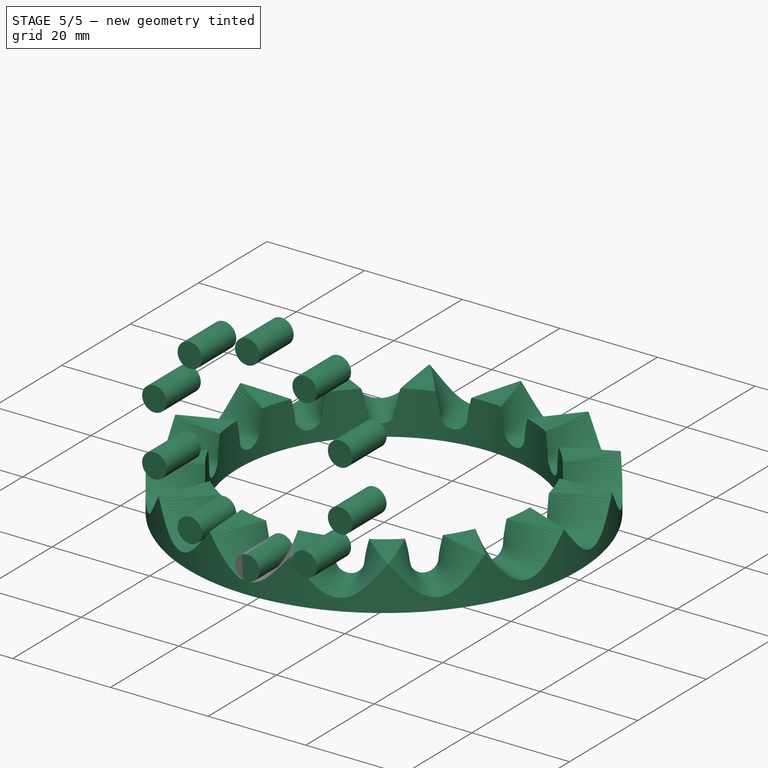
[diagram: stage 5 of 5 — iso view after this stage's code; geometry added in this stage tinted green]
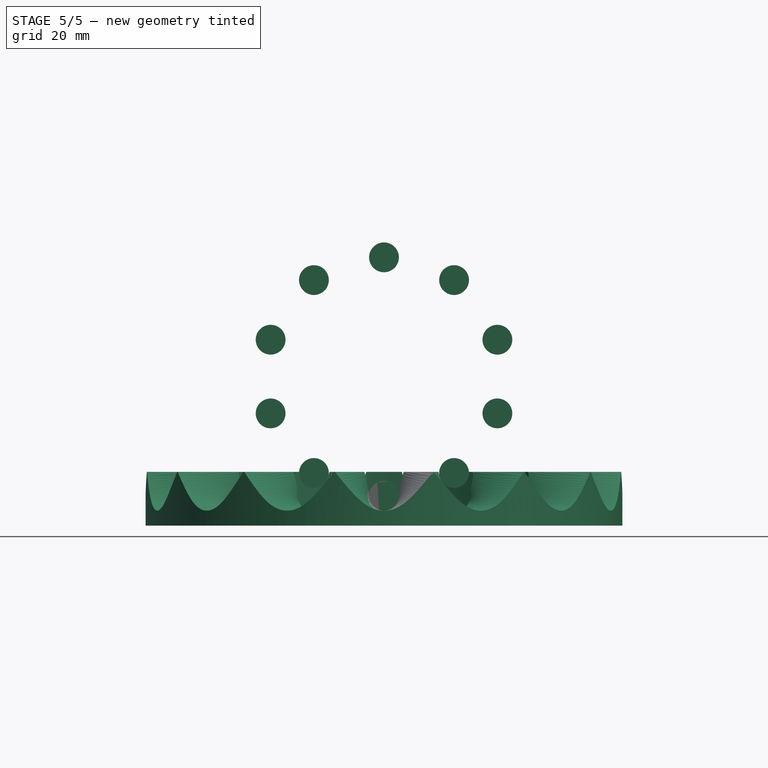
[diagram: stage 5 of 5 — front view after this stage's code; geometry added in this stage tinted green]
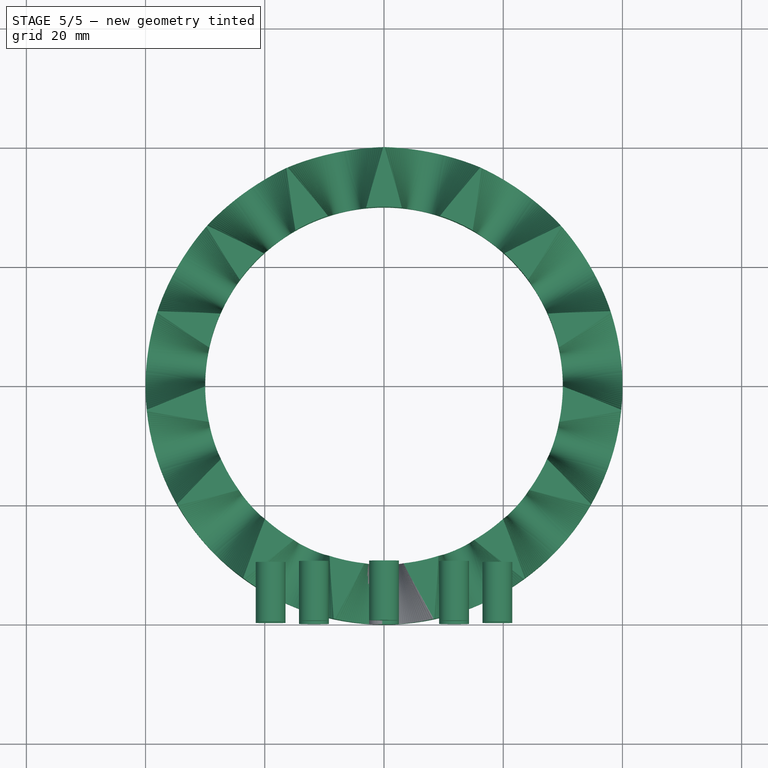
[diagram: stage 5 of 5 — top view after this stage's code; geometry added in this stage tinted green]
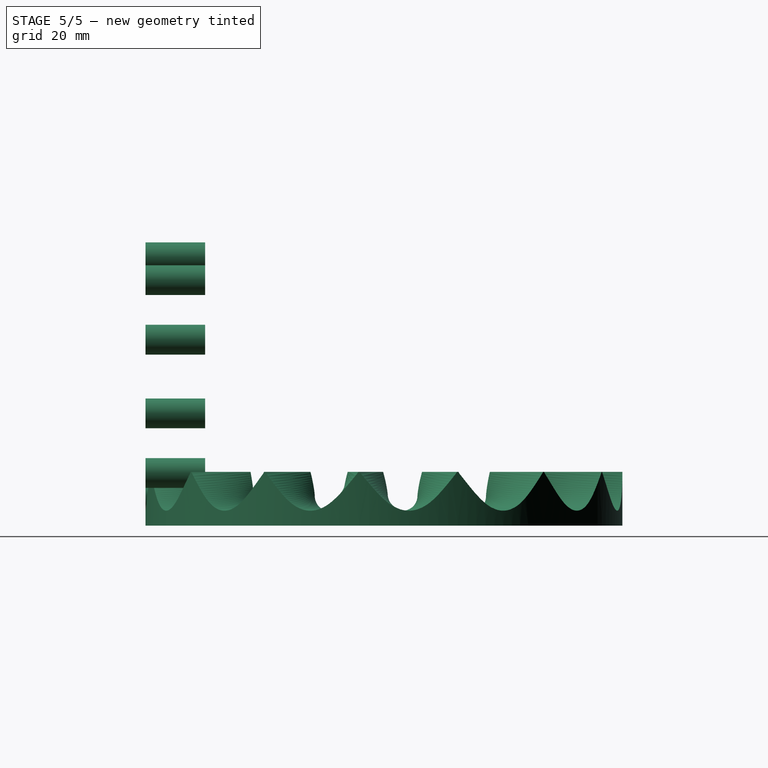
[diagram: stage 5 of 5 — right view after this stage's code; geometry added in this stage tinted green]
FEATURE [Sketcher::SketchObject] Sketch007
  ArcFitTolerance = 1e-06
  AttachmentOffset = pos=(0,5,0) rot=(0,1,0;0.093084rad)
  AttachmentSupport = -> [XZ_Plane]
  ExternalTypes = [0]
  FullyConstrained = true
  MakeInternals = false
  MapMode = 5
  Placement = pos=(0,1.1e-15,5) rot=(0.997838,0.046475,0.046475;1.57296rad)
  expr: .AttachmentOffset.Rotation.Angle = <<Spreadsheet>>.A_1 * 4 * <<Spreadsheet>>.C_1_tooth / <<Spreadsheet>>.C_2_tooth
  expr: Constraints[2] = <<Spreadsheet>>.R_1
  expr: Constraints[7] = <<Spreadsheet>>.A_1 * 4
  sketch-geometry (3):
    g0: Circle CenterX=-2.78346 CenterY=0.194639 CenterZ=0 NormalX=0 NormalY=0 NormalZ=1 AngleXU=0 Radius=2.5
    g1: Circle [constr] CenterX=0 CenterY=20 CenterZ=0 NormalX=0 NormalY=0 NormalZ=1 AngleXU=0 Radius=20
    g2: LineSegment [constr] StartX=-2.78346 StartY=0.194639 StartZ=0 EndX=0 EndY=20 EndZ=0
  constraints (8):
    c: Diameter(g0) = 5
    c: PointOnObject(g1,g-2)
    c: Radius(g1) = 20
    c: PointOnObject(g0,g1)
    c: PointOnObject(g-1,g1)
    c: Coincident(g2,g0)
    c: Coincident(g2,g1)
    c: Angle(g2,g-2) = 0.139626
FEATURE [Sketcher::SketchObject] Sketch011  label="Sketch008"
  ArcFitTolerance = 1e-06
  AttachmentOffset = pos=(0,5,0) rot=(0,1,0;0.116355rad)
  AttachmentSupport = -> [XZ_Plane]
  ExternalTypes = [0]
  FullyConstrained = true
  MakeInternals = false
  MapMode = 5
  Placement = pos=(0,1.1e-15,5) rot=(0.996625,0.058047,0.058047;1.57418rad)
  expr: .AttachmentOffset.Rotation.Angle = <<Spreadsheet>>.A_1 * 5 * <<Spreadsheet>>.C_1_tooth / <<Spreadsheet>>.C_2_tooth
  expr: Constraints[2] = <<Spreadsheet>>.R_1
  expr: Constraints[7] = <<Spreadsheet>>.A_1 * 5
  sketch-geometry (3):
    g0: Circle CenterX=-3.47296 CenterY=0.303845 CenterZ=0 NormalX=0 NormalY=0 NormalZ=1 AngleXU=0 Radius=2.5
    g1: Circle [constr] CenterX=-4e-16 CenterY=20 CenterZ=0 NormalX=0 NormalY=0 NormalZ=1 AngleXU=0 Radius=20
    g2: LineSegment [constr] StartX=-3.47296 StartY=0.303845 StartZ=0 EndX=-4e-16 EndY=20 EndZ=0
  constraints (8):
    c: Diameter(g0) = 5
    c: PointOnObject(g1,g-2)
    c: Radius(g1) = 20
    c: PointOnObject(g0,g1)
    c: PointOnObject(g-1,g1)
    c: Coincident(g2,g0)
    c: Coincident(g2,g1)
    c: Angle(g2,g-2) = 0.174533
FEATURE [Sketcher::SketchObject] Sketch018  label="wheel"
  ArcFitTolerance = 1e-06
  AttachmentOffset = pos=(0,5,30) rot=(0,0,1;0rad)
  AttachmentSupport = -> [XZ_Plane001]
  ExternalTypes = [0]
  FullyConstrained = true
  MakeInternals = false
  MapMode = 5
  Placement = pos=(0,-30,5) rot=(1,0,0;1.5708rad)
  expr: .AttachmentOffset.Base.z = <<Spreadsheet>>.R_2
  sketch-geometry (22):
    g0: GeomPoint X=0 Y=20 Z=0
    g1: Circle CenterX=-11.7557 CenterY=3.81966 CenterZ=0 NormalX=0 NormalY=0 NormalZ=1 AngleXU=0 Radius=2.5
    g2: Circle CenterX=-19.0211 CenterY=13.8197 CenterZ=0 NormalX=0 NormalY=0 NormalZ=1 AngleXU=0 Radius=2.5
    g3: Circle CenterX=-19.0211 CenterY=26.1803 CenterZ=0 NormalX=0 NormalY=0 NormalZ=1 AngleXU=0 Radius=2.5
    g4: Circle CenterX=-11.7557 CenterY=36.1803 CenterZ=0 NormalX=0 NormalY=0 NormalZ=1 AngleXU=0 Radius=2.5
    g5: Circle CenterX=11.7557 CenterY=36.1803 CenterZ=0 NormalX=0 NormalY=0 NormalZ=1 AngleXU=0 Radius=2.5
    g6: Circle CenterX=19.0211 CenterY=26.1803 CenterZ=0 NormalX=0 NormalY=0 NormalZ=1 AngleXU=0 Radius=2.5
    g7: Circle CenterX=19.0211 CenterY=13.8197 CenterZ=0 NormalX=0 NormalY=0 NormalZ=1 AngleXU=0 Radius=2.5
    g8: Circle CenterX=11.7557 CenterY=3.81966 CenterZ=0 NormalX=0 NormalY=0 NormalZ=1 AngleXU=0 Radius=2.5
    g9: LineSegment [constr] StartX=11.7557 StartY=3.81966 StartZ=0 EndX=19.0211 EndY=13.8197 EndZ=0
    g10: LineSegment [constr] StartX=19.0211 StartY=13.8197 StartZ=0 EndX=19.0211 EndY=26.1803 EndZ=0
    g11: LineSegment [constr] StartX=19.0211 StartY=26.1803 StartZ=0 EndX=11.7557 EndY=36.1803 EndZ=0
    g12: LineSegment [constr] StartX=11.7557 StartY=36.1803 StartZ=0 EndX=0 EndY=40 EndZ=0
    g13: LineSegment [constr] StartX=0 StartY=40 StartZ=0 EndX=-11.7557 EndY=36.1803 EndZ=0
    g14: LineSegment [constr] StartX=-11.7557 StartY=36.1803 StartZ=0 EndX=-19.0211 EndY=26.1803 EndZ=0
    g15: LineSegment [constr] StartX=-19.0211 StartY=26.1803 StartZ=0 EndX=-19.0211 EndY=13.8197 EndZ=0
    g16: LineSegment [constr] StartX=-19.0211 StartY=13.8197 StartZ=0 EndX=-11.7557 EndY=3.81966 EndZ=0
    g17: Circle [constr] CenterX=0 CenterY=20 CenterZ=0 NormalX=0 NormalY=0 NormalZ=1 AngleXU=0 Radius=20
    g18: Circle CenterX=0 CenterY=-4e-16 CenterZ=0 NormalX=0 NormalY=0 NormalZ=1 AngleXU=0 Radius=2.5
    g19: LineSegment [constr] StartX=-11.7557 StartY=3.81966 StartZ=0 EndX=0 EndY=-4e-16 EndZ=0
    g20: LineSegment [constr] StartX=11.7557 StartY=3.81966 StartZ=0 EndX=0 EndY=-4e-16 EndZ=0
    g21: Circle CenterX=0 CenterY=40 CenterZ=0 NormalX=0 NormalY=0 NormalZ=1 AngleXU=0 Radius=2.5
  constraints (53):
    c: PointOnObject(g0,g-2)
    c: DistanceY(g0) = 20
    c: Coincident(g9,g7)
    c: Coincident(g9,g10)
    c: Coincident(g10,g6)
    c: Coincident(g10,g11)
    c: Coincident(g11,g5)
    c: Coincident(g11,g12)
    c: Coincident(g12,g13)
    c: Coincident(g13,g4)
    c: Coincident(g13,g14)
    c: Coincident(g14,g3)
    c: Coincident(g14,g15)
    c: Coincident(g15,g2)
    c: Coincident(g15,g16)
    c: Coincident(g16,g1)
    c: Coincident(g17,g0)
    c: PointOnObject(g7,g17)
    c: PointOnObject(g8,g17)
    c: PointOnObject(g6,g17)
    c: PointOnObject(g5,g17)
    c: PointOnObject(g4,g17)
    c: PointOnObject(g3,g17)
    c: PointOnObject(g2,g17)
    c: PointOnObject(g1,g17)
    c: PointOnObject(g-1,g17)
    c: Diameter(g18) = 5
    c: Coincident(g19,g1)
    c: Coincident(g19,g18)
    c: Coincident(g18,g-1)
    c: Coincident(g8,g9)
    c: Coincident(g20,g8)
    c: Coincident(g20,g18)
    c: Equal(g20,g9)
    c: Equal(g9,g10)
    c: Equal(g10,g11)
    c: Equal(g11,g12)
    c: Equal(g12,g13)
    c: Equal(g13,g14)
    c: Equal(g14,g15)
    c: Equal(g16,g19)
    c: Equal(g15,g16)
    c: Equal(g20,g19)
    c: Equal(g18,g8)
    c: Equal(g18,g7)
    c: Equal(g18,g6)
    c: Equal(g18,g5)
    c: Coincident(g21,g12)
    c: Equal(g21,g18)
    c: Equal(g4,g18)
    c: Equal(g3,g18)
    c: Equal(g2,g18)
    c: Equal(g1,g18)
FEATURE [Sketcher::SketchObject] Sketch019  label="Sketch009"
  ArcFitTolerance = 1e-06
  AttachmentOffset = pos=(0,5,0) rot=(0,1,0;0.139626rad)
  AttachmentSupport = -> [XZ_Plane]
  ExternalTypes = [0]
  FullyConstrained = true
  MakeInternals = false
  MapMode = 5
  Placement = pos=(0,1.1e-15,5) rot=(0.995146,0.069587,0.069587;1.57566rad)
  expr: .AttachmentOffset.Rotation.Angle = <<Spreadsheet>>.A_1 * 6 * <<Spreadsheet>>.C_1_tooth / <<Spreadsheet>>.C_2_tooth
  expr: Constraints[2] = <<Spreadsheet>>.R_1
  expr: Constraints[7] = <<Spreadsheet>>.A_1 * 6
  sketch-geometry (3):
    g0: Circle CenterX=-4.15823 CenterY=0.437048 CenterZ=0 NormalX=0 NormalY=0 NormalZ=1 AngleXU=0 Radius=2.5
    g1: Circle [constr] CenterX=0 CenterY=20 CenterZ=0 NormalX=0 NormalY=0 NormalZ=1 AngleXU=0 Radius=20
    g2: LineSegment [constr] StartX=-4.15823 StartY=0.437048 StartZ=0 EndX=0 EndY=20 EndZ=0
  constraints (8):
    c: Diameter(g0) = 5
    c: PointOnObject(g1,g-2)
    c: Radius(g1) = 20
    c: PointOnObject(g0,g1)
    c: PointOnObject(g-1,g1)
    c: Coincident(g2,g0)
    c: Coincident(g2,g1)
    c: Angle(g2,g-2) = 0.20944
FEATURE [Sketcher::SketchObject] Sketch020  label="Sketch010"
  ArcFitTolerance = 1e-06
  AttachmentOffset = pos=(0,5,0) rot=(0,1,0;0.162897rad)
  AttachmentSupport = -> [XZ_Plane]
  ExternalTypes = [0]
  FullyConstrained = true
  MakeInternals = false
  MapMode = 5
  Placement = pos=(0,1.1e-15,5) rot=(0.993403,0.081091,0.081091;1.57742rad)
  expr: .AttachmentOffset.Rotation.Angle = <<Spreadsheet>>.A_1 * 7 * <<Spreadsheet>>.C_1_tooth / <<Spreadsheet>>.C_2_tooth
  expr: Constraints[2] = <<Spreadsheet>>.R_1
  expr: Constraints[7] = <<Spreadsheet>>.A_1 * 7
  sketch-geometry (3):
    g0: Circle CenterX=-4.83844 CenterY=0.594085 CenterZ=0 NormalX=0 NormalY=0 NormalZ=1 AngleXU=0 Radius=2.5
    g1: Circle [constr] CenterX=0 CenterY=20 CenterZ=0 NormalX=0 NormalY=0 NormalZ=1 AngleXU=0 Radius=20
    g2: LineSegment [constr] StartX=-4.83844 StartY=0.594085 StartZ=0 EndX=0 EndY=20 EndZ=0
  constraints (8):
    c: Diameter(g0) = 5
    c: PointOnObject(g1,g-2)
    c: Radius(g1) = 20
    c: PointOnObject(g0,g1)
    c: PointOnObject(g-1,g1)
    c: Coincident(g2,g0)
    c: Coincident(g2,g1)
    c: Angle(g2,g-2) = 0.244346
FEATURE [Sketcher::SketchObject] Sketch021  label="Sketch011"
  ArcFitTolerance = 1e-06
  AttachmentOffset = pos=(0,5,0) rot=(0,1,0;0.186168rad)
  AttachmentSupport = -> [XZ_Plane]
  ExternalTypes = [0]
  FullyConstrained = true
  MakeInternals = false
  MapMode = 5
  Placement = pos=(0,1.1e-15,5) rot=(0.991397,0.092551,0.092551;1.57944rad)
  expr: .AttachmentOffset.Rotation.Angle = <<Spreadsheet>>.A_1 * 8 * <<Spreadsheet>>.C_1_tooth / <<Spreadsheet>>.C_2_tooth
  expr: Constraints[2] = <<Spreadsheet>>.R_1
  expr: Constraints[7] = <<Spreadsheet>>.A_1 * 8
  sketch-geometry (3):
    g0: Circle CenterX=-5.51275 CenterY=0.774766 CenterZ=0 NormalX=0 NormalY=0 NormalZ=1 AngleXU=0 Radius=2.5
    g1: Circle [constr] CenterX=0 CenterY=20 CenterZ=0 NormalX=0 NormalY=0 NormalZ=1 AngleXU=0 Radius=20
    g2: LineSegment [constr] StartX=-5.51275 StartY=0.774766 StartZ=0 EndX=0 EndY=20 EndZ=0
  constraints (8):
    c: Diameter(g0) = 5
    c: PointOnObject(g1,g-2)
    c: Radius(g1) = 20
    c: PointOnObject(g0,g1)
    c: PointOnObject(g-1,g1)
    c: Coincident(g2,g0)
    c: Coincident(g2,g1)
    c: Angle(g2,g-2) = 0.279253
FEATURE [Sketcher::SketchObject] Sketch023  label="Sketch013"
  ArcFitTolerance = 1e-06
  AttachmentOffset = pos=(0,5,0) rot=(0,1,0;0.232711rad)
  AttachmentSupport = -> [XZ_Plane]
  ExternalTypes = [0]
  FullyConstrained = true
  MakeInternals = false
  MapMode = 5
  Placement = pos=(0,1.1e-15,5) rot=(0.986612,0.115318,0.115318;1.58427rad)
  expr: .AttachmentOffset.Rotation.Angle = <<Spreadsheet>>.A_1 * 10 * <<Spreadsheet>>.C_1_tooth / <<Spreadsheet>>.C_2_tooth
  expr: Constraints[2] = <<Spreadsheet>>.R_1
  expr: Constraints[7] = <<Spreadsheet>>.A_1 * 10
  sketch-geometry (3):
    g0: Circle CenterX=-6.8404 CenterY=1.20615 CenterZ=0 NormalX=0 NormalY=0 NormalZ=1 AngleXU=0 Radius=2.5
    g1: Circle [constr] CenterX=-9e-16 CenterY=20 CenterZ=0 NormalX=0 NormalY=0 NormalZ=1 AngleXU=0 Radius=20
    g2: LineSegment [constr] StartX=-6.8404 StartY=1.20615 StartZ=0 EndX=-9e-16 EndY=20 EndZ=0
  constraints (8):
    c: Diameter(g0) = 5
    c: PointOnObject(g1,g-2)
    c: Radius(g1) = 20
    c: PointOnObject(g0,g1)
    c: PointOnObject(g-1,g1)
    c: Coincident(g2,g0)
    c: Coincident(g2,g1)
    c: Angle(g2,g-2) = 0.349066
FEATURE [Sketcher::SketchObject] Sketch022  label="Sketch012"
  ArcFitTolerance = 1e-06
  AttachmentOffset = pos=(0,5,0) rot=(0,1,0;0.20944rad)
  AttachmentSupport = -> [XZ_Plane]
  ExternalTypes = [0]
  FullyConstrained = true
  MakeInternals = false
  MapMode = 5
  Placement = pos=(0,1.1e-15,5) rot=(0.989133,0.103962,0.103962;1.58172rad)
  expr: .AttachmentOffset.Rotation.Angle = <<Spreadsheet>>.A_1 * 9 * <<Spreadsheet>>.C_1_tooth / <<Spreadsheet>>.C_2_tooth
  expr: Constraints[2] = <<Spreadsheet>>.R_1
  expr: Constraints[7] = <<Spreadsheet>>.A_1 * 9
  sketch-geometry (3):
    g0: Circle CenterX=-6.18034 CenterY=0.97887 CenterZ=0 NormalX=0 NormalY=0 NormalZ=1 AngleXU=0 Radius=2.5
    g1: Circle [constr] CenterX=9e-16 CenterY=20 CenterZ=0 NormalX=0 NormalY=0 NormalZ=1 AngleXU=0 Radius=20
    g2: LineSegment [constr] StartX=-6.18034 StartY=0.97887 StartZ=0 EndX=9e-16 EndY=20 EndZ=0
  constraints (8):
    c: Diameter(g0) = 5
    c: PointOnObject(g1,g-2)
    c: Radius(g1) = 20
    c: PointOnObject(g0,g1)
    c: PointOnObject(g-1,g1)
    c: Coincident(g2,g0)
    c: Coincident(g2,g1)
    c: Angle(g2,g-2) = 0.314159
FEATURE [Sketcher::SketchObject] Sketch024  label="Sketch014"
  ArcFitTolerance = 1e-06
  AttachmentOffset = pos=(0,5,0) rot=(0,1,0;0.255982rad)
  AttachmentSupport = -> [XZ_Plane]
  ExternalTypes = [0]
  FullyConstrained = true
  MakeInternals = false
  MapMode = 5
  Placement = pos=(0,1.1e-15,5) rot=(0.983838,0.126614,0.126614;1.58709rad)
  expr: .AttachmentOffset.Rotation.Angle = <<Spreadsheet>>.A_1 * 11 * <<Spreadsheet>>.C_1_tooth / <<Spreadsheet>>.C_2_tooth
  expr: Constraints[2] = <<Spreadsheet>>.R_1
  expr: Constraints[7] = <<Spreadsheet>>.A_1 * 11
  sketch-geometry (3):
    g0: Circle CenterX=-7.49213 CenterY=1.45632 CenterZ=0 NormalX=0 NormalY=0 NormalZ=1 AngleXU=0 Radius=2.5
    g1: Circle [constr] CenterX=0 CenterY=20 CenterZ=0 NormalX=0 NormalY=0 NormalZ=1 AngleXU=0 Radius=20
    g2: LineSegment [constr] StartX=-7.49213 StartY=1.45632 StartZ=0 EndX=0 EndY=20 EndZ=0
  constraints (8):
    c: Diameter(g0) = 5
    c: PointOnObject(g1,g-2)
    c: Radius(g1) = 20
    c: PointOnObject(g0,g1)
    c: PointOnObject(g-1,g1)
    c: Coincident(g2,g0)
    c: Coincident(g2,g1)
    c: Angle(g2,g-2) = 0.383972
FEATURE [Sketcher::SketchObject] Sketch025  label="Sketch015"
  ArcFitTolerance = 1e-06
  AttachmentOffset = pos=(0,5,0) rot=(0,1,0;0.279253rad)
  AttachmentSupport = -> [XZ_Plane]
  ExternalTypes = [0]
  FullyConstrained = true
  MakeInternals = false
  MapMode = 5
  Placement = pos=(0,1.1e-15,5) rot=(0.980815,0.137845,0.137845;1.59017rad)
  expr: .AttachmentOffset.Rotation.Angle = <<Spreadsheet>>.A_1 * 12 * <<Spreadsheet>>.C_1_tooth / <<Spreadsheet>>.C_2_tooth
  expr: Constraints[2] = <<Spreadsheet>>.R_1
  expr: Constraints[7] = <<Spreadsheet>>.A_1 * 12
  sketch-geometry (3):
    g0: Circle CenterX=-8.13473 CenterY=1.72909 CenterZ=0 NormalX=0 NormalY=0 NormalZ=1 AngleXU=0 Radius=2.5
    g1: Circle [constr] CenterX=0 CenterY=20 CenterZ=0 NormalX=0 NormalY=0 NormalZ=1 AngleXU=0 Radius=20
    g2: LineSegment [constr] StartX=-8.13473 StartY=1.72909 StartZ=0 EndX=0 EndY=20 EndZ=0
  constraints (8):
    c: Diameter(g0) = 5
    c: PointOnObject(g1,g-2)
    c: Radius(g1) = 20
    c: PointOnObject(g0,g1)
    c: PointOnObject(g-1,g1)
    c: Coincident(g2,g0)
    c: Coincident(g2,g1)
    c: Angle(g2,g-2) = 0.418879
FEATURE [Sketcher::SketchObject] Sketch026  label="Sketch016"
  ArcFitTolerance = 1e-06
  AttachmentOffset = pos=(0,5,0) rot=(0,1,0;0.302524rad)
  AttachmentSupport = -> [XZ_Plane]
  ExternalTypes = [0]
  FullyConstrained = true
  MakeInternals = false
  MapMode = 5
  Placement = pos=(0,1.1e-15,5) rot=(0.977546,0.149004,0.149004;1.5935rad)
  expr: .AttachmentOffset.Rotation.Angle = <<Spreadsheet>>.A_1 * 13 * <<Spreadsheet>>.C_1_tooth / <<Spreadsheet>>.C_2_tooth
  expr: Constraints[2] = <<Spreadsheet>>.R_1
  expr: Constraints[7] = <<Spreadsheet>>.A_1 * 13
  sketch-geometry (3):
    g0: Circle CenterX=-8.76742 CenterY=2.02412 CenterZ=0 NormalX=0 NormalY=0 NormalZ=1 AngleXU=0 Radius=2.5
    g1: Circle [constr] CenterX=0 CenterY=20 CenterZ=0 NormalX=0 NormalY=0 NormalZ=1 AngleXU=0 Radius=20
    g2: LineSegment [constr] StartX=-8.76742 StartY=2.02412 StartZ=0 EndX=0 EndY=20 EndZ=0
  constraints (8):
    c: Diameter(g0) = 5
    c: PointOnObject(g1,g-2)
    c: Radius(g1) = 20
    c: PointOnObject(g0,g1)
    c: PointOnObject(g-1,g1)
    c: Coincident(g2,g0)
    c: Coincident(g2,g1)
    c: Angle(g2,g-2) = 0.453786
FEATURE [Sketcher::SketchObject] Sketch027  label="Sketch017"
  ArcFitTolerance = 1e-06
  AttachmentOffset = pos=(0,5,0) rot=(0,1,0;0.325795rad)
  AttachmentSupport = -> [XZ_Plane]
  ExternalTypes = [0]
  FullyConstrained = true
  MakeInternals = false
  MapMode = 5
  Placement = pos=(0,1.1e-15,5) rot=(0.974035,0.160086,0.160086;1.5971rad)
  expr: .AttachmentOffset.Rotation.Angle = <<Spreadsheet>>.A_1 * 14 * <<Spreadsheet>>.C_1_tooth / <<Spreadsheet>>.C_2_tooth
  expr: Constraints[2] = <<Spreadsheet>>.R_1
  expr: Constraints[7] = <<Spreadsheet>>.A_1 * 14
  sketch-geometry (3):
    g0: Circle CenterX=-9.38943 CenterY=2.34105 CenterZ=0 NormalX=0 NormalY=0 NormalZ=1 AngleXU=0 Radius=2.5
    g1: Circle [constr] CenterX=0 CenterY=20 CenterZ=0 NormalX=0 NormalY=0 NormalZ=1 AngleXU=0 Radius=20
    g2: LineSegment [constr] StartX=-9.38943 StartY=2.34105 StartZ=0 EndX=0 EndY=20 EndZ=0
  constraints (8):
    c: Diameter(g0) = 5
    c: PointOnObject(g1,g-2)
    c: Radius(g1) = 20
    c: PointOnObject(g0,g1)
    c: PointOnObject(g-1,g1)
    c: Coincident(g2,g0)
    c: Coincident(g2,g1)
    c: Angle(g2,g-2) = 0.488692
FEATURE [Sketcher::SketchObject] Sketch028  label="Sketch018"
  ArcFitTolerance = 1e-06
  AttachmentOffset = pos=(0,5,0) rot=(0,1,0;0.349066rad)
  AttachmentSupport = -> [XZ_Plane]
  ExternalTypes = [0]
  FullyConstrained = true
  MakeInternals = false
  MapMode = 5
  Placement = pos=(0,1.1e-15,5) rot=(0.970288,0.171088,0.171088;1.60095rad)
  expr: .AttachmentOffset.Rotation.Angle = <<Spreadsheet>>.A_1 * 15 * <<Spreadsheet>>.C_1_tooth / <<Spreadsheet>>.C_2_tooth
  expr: Constraints[2] = <<Spreadsheet>>.R_1
  expr: Constraints[7] = <<Spreadsheet>>.A_1 * 15
  sketch-geometry (3):
    g0: Circle CenterX=-10 CenterY=2.67949 CenterZ=0 NormalX=0 NormalY=0 NormalZ=1 AngleXU=0 Radius=2.5
    g1: Circle [constr] CenterX=0 CenterY=20 CenterZ=0 NormalX=0 NormalY=0 NormalZ=1 AngleXU=0 Radius=20
    g2: LineSegment [constr] StartX=-10 StartY=2.67949 StartZ=0 EndX=0 EndY=20 EndZ=0
  constraints (8):
    c: Diameter(g0) = 5
    c: PointOnObject(g1,g-2)
    c: Radius(g1) = 20
    c: PointOnObject(g0,g1)
    c: PointOnObject(g-1,g1)
    c: Coincident(g2,g0)
    c: Coincident(g2,g1)
    c: Angle(g2,g-2) = 0.523599
FEATURE [Sketcher::SketchObject] Sketch030  label="Sketch019"
  ArcFitTolerance = 1e-06
  AttachmentOffset = pos=(0,5,0) rot=(0,1,0;0.372337rad)
  AttachmentSupport = -> [XZ_Plane]
  ExternalTypes = [0]
  FullyConstrained = true
  MakeInternals = false
  MapMode = 5
  Placement = pos=(0,1.1e-15,5) rot=(0.966307,0.182003,0.182003;1.60506rad)
  expr: .AttachmentOffset.Rotation.Angle = <<Spreadsheet>>.A_1 * 16 * <<Spreadsheet>>.C_1_tooth / <<Spreadsheet>>.C_2_tooth
  expr: Constraints[2] = <<Spreadsheet>>.R_1
  expr: Constraints[7] = <<Spreadsheet>>.A_1 * 16
  sketch-geometry (3):
    g0: Circle CenterX=-10.5984 CenterY=3.03904 CenterZ=0 NormalX=0 NormalY=0 NormalZ=1 AngleXU=0 Radius=2.5
    g1: Circle [constr] CenterX=0 CenterY=20 CenterZ=0 NormalX=0 NormalY=0 NormalZ=1 AngleXU=0 Radius=20
    g2: LineSegment [constr] StartX=-10.5984 StartY=3.03904 StartZ=0 EndX=-1.8e-15 EndY=20 EndZ=0
  constraints (8):
    c: Diameter(g0) = 5
    c: PointOnObject(g1,g-2)
    c: Radius(g1) = 20
    c: PointOnObject(g0,g1)
    c: PointOnObject(g-1,g1)
    c: Coincident(g2,g0)
    c: Coincident(g2,g1)
    c: Angle(g2,g-2) = 0.558505
FEATURE [Sketcher::SketchObject] Sketch031  label="Sketch020"
  ArcFitTolerance = 1e-06
  AttachmentOffset = pos=(0,5,0) rot=(0,1,0;0.395608rad)
  AttachmentSupport = -> [XZ_Plane]
  ExternalTypes = [0]
  FullyConstrained = true
  MakeInternals = false
  MapMode = 5
  Placement = pos=(0,1.1e-15,5) rot=(0.962099,0.192828,0.192828;1.60943rad)
  expr: .AttachmentOffset.Rotation.Angle = <<Spreadsheet>>.A_1 * 17 * <<Spreadsheet>>.C_1_tooth / <<Spreadsheet>>.C_2_tooth
  expr: Constraints[2] = <<Spreadsheet>>.R_1
  expr: Constraints[7] = <<Spreadsheet>>.A_1 * 17
  sketch-geometry (3):
    g0: Circle CenterX=-11.1839 CenterY=3.41925 CenterZ=0 NormalX=0 NormalY=0 NormalZ=1 AngleXU=0 Radius=2.5
    g1: Circle [constr] CenterX=0 CenterY=20 CenterZ=0 NormalX=0 NormalY=0 NormalZ=1 AngleXU=0 Radius=20
    g2: LineSegment [constr] StartX=-11.1839 StartY=3.41925 StartZ=0 EndX=0 EndY=20 EndZ=0
  constraints (8):
    c: Diameter(g0) = 5
    c: PointOnObject(g1,g-2)
    c: Radius(g1) = 20
    c: PointOnObject(g0,g1)
    c: PointOnObject(g-1,g1)
    c: Coincident(g2,g0)
    c: Coincident(g2,g1)
    c: Angle(g2,g-2) = 0.593412
FEATURE [App::Point] Origin003
  Role = Origin
FEATURE [Sketcher::SketchObject] Sketch032
  ArcFitTolerance = 1e-06
  AttachmentSupport = -> [Origin002]
  ExternalTypes = [0]
  FullyConstrained = true
  MakeInternals = false
  MapMode = 5
  expr: Constraints[2] = <<Spreadsheet>>.R_2 + 10
  expr: Constraints[3] = <<Spreadsheet>>.R_2
  sketch-geometry (4):
    g0: ArcOfCircle CenterX=0 CenterY=0 CenterZ=0 NormalX=0 NormalY=0 NormalZ=1 AngleXU=0 Radius=30 StartAngle=4.71239 EndAngle=4.92183
    g1: ArcOfCircle CenterX=0 CenterY=0 CenterZ=0 NormalX=0 NormalY=0 NormalZ=1 AngleXU=0 Radius=40 StartAngle=4.71239 EndAngle=4.92183
    g2: LineSegment StartX=6.23735 StartY=-29.3444 StartZ=0 EndX=8.31647 EndY=-39.1259 EndZ=0
    g3: LineSegment StartX=-5.5e-15 StartY=-30 StartZ=0 EndX=-7.3e-15 EndY=-40 EndZ=0
  constraints (12):
    c: PointOnObject(g0,g-2)
    c: PointOnObject(g1,g-2)
    c: Radius(g1) = 40
    c: Radius(g0) = 30
    c: Coincident(g2,g1)
    c: Coincident(g0,g1)
    c: Coincident(g0,g-1)
    c: Coincident(g0,g2)
    c: PointOnObject(g0,g2)
    c: Coincident(g0,g3)
    c: Coincident(g1,g3)
    c: Angle(g3,g2) = 0.20944
FEATURE [PartDesign::Pad] Pad022
  Direction = (0,0,1)
  Length = 9
  Length2 = 10
  Profile = -> Sketch032
  ReferenceAxis = -> Sketch032 [N_Axis]
  Refine = true
  SideType = 0
  Suppressed = false
  Type = 0
  Type2 = 0
FEATURE [PartDesign::Body] Body
  AllowCompound = true
  Group = -> [Sketch001,Sketch002,Sketch003,Sketch,Pad,Sketch004,Pad001,Sketch005,Pad002,Sketch006,Pad003,Sketch007,Pad026,Pad007,Pad008,Pad009,Pad010,Sketch022,Sketch021,Sketch011,Sketch019,Sketch020,Pad011,Sketch023,Pad013,Sketch024,Pad014,Sketch025,Pad015,Sketch026,Pad016,Sketch027,Pad017,Sketch028,Pad018,Pad020,Sketch031,Sketch030,Pad021,Sketch033,Pad023,Sketch034,Pad024,Sketch035,Pad025,Sketch036,Pad027]
  Origin = -> Origin
  Tip = -> Pad027
FEATURE [PartDesign::Boolean] Boolean
  BaseFeature = -> Pad022
  Group = -> [Body]
  Refine = true
  Suppressed = false
  Type = 1
FEATURE [PartDesign::Pocket] Pocket
  BaseFeature = -> Boolean
  Direction = (0,0,-1)
  Length = 2
  Length2 = 5
  Profile = -> Boolean [Face28]
  Refine = true
  SideType = 0
  Suppressed = false
  Type = 0
  Type2 = 0
FEATURE [PartDesign::Mirrored] Mirror
  MirrorPlane = -> Pocket [Face3]
  Refine = true
  Suppressed = false
  TransformMode = 0
FEATURE [PartDesign::PolarPattern] Polar_Pattern
  Angle = 360
  Axis = -> Z_Axis001
  Mode = 0
  Occurrences = 15
  Offset = 120
  Refine = true
  SpacingPattern = [0]
  Spacings = [-1,-1,-1,-1,-1,-1,-1,-1,-1,-1,-1,-1,-1,-1]
  Suppressed = false
  TransformMode = 0
  expr: Occurrences = <<Spreadsheet>>.C_2_tooth
FEATURE [PartDesign::MultiTransform] MultiTransform
  BaseFeature = -> Pocket
  Refine = true
  Suppressed = false
  TransformMode = 1
  Transformations = -> [Mirror,Polar_Pattern]
FEATURE [PartDesign::Pad] Pad028
  BaseFeature = -> MultiTransform
  Direction = (0,-1,2e-16)
  Length = 10
  Length2 = 10
  Profile = -> Sketch018
  ReferenceAxis = -> Sketch018 [N_Axis]
  Refine = true
  SideType = 0
  Suppressed = false
  Type = 0
  Type2 = 0
FEATURE [PartDesign::Body] Body001
  AllowCompound = true
  Group = -> [Sketch032,Pad022,Sketch018,Boolean,Pocket,MultiTransform,Mirror,Polar_Pattern,Pad028]
  Origin = -> Origin002
  Tip = -> Pad028
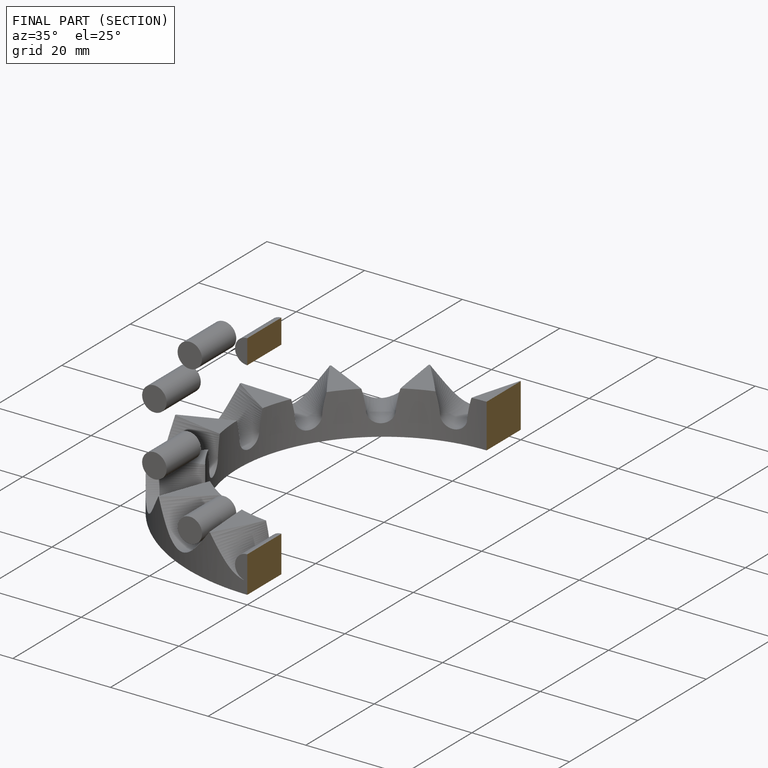
[diagram: finished part — half-section view (interior)]
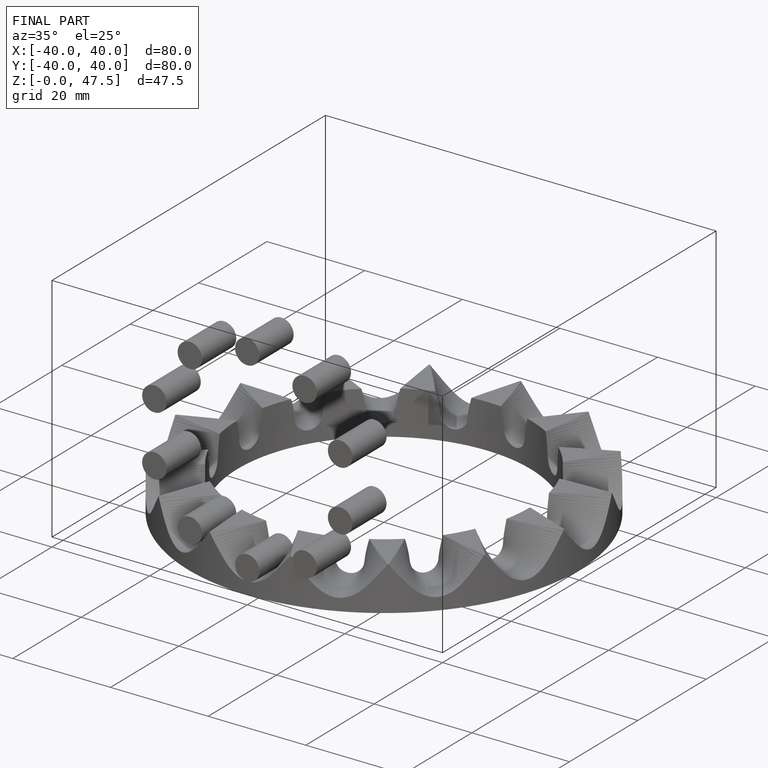
[diagram: finished part — iso view with bounding-box wireframe]
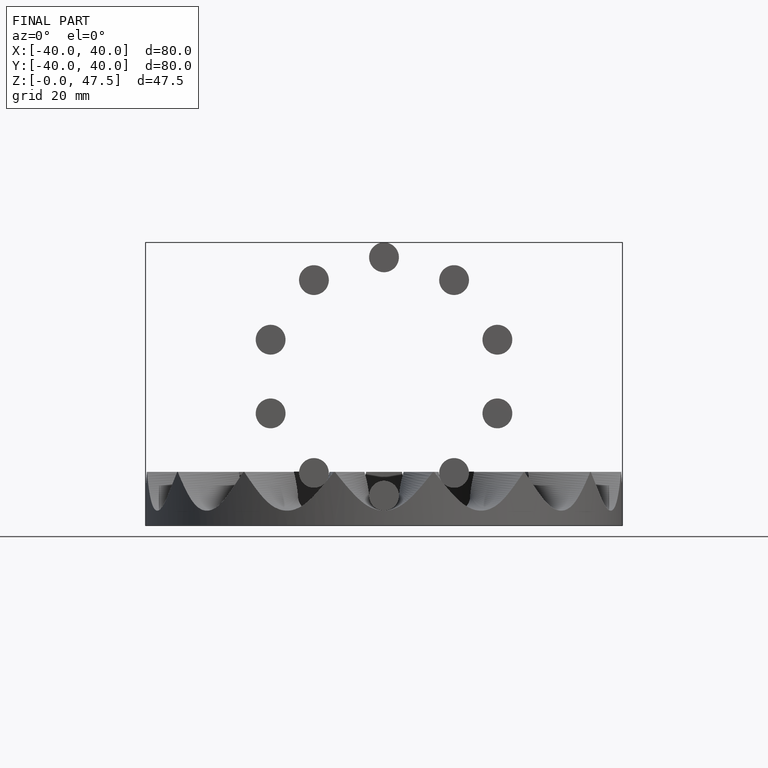
[diagram: finished part — front view with bounding-box wireframe]
